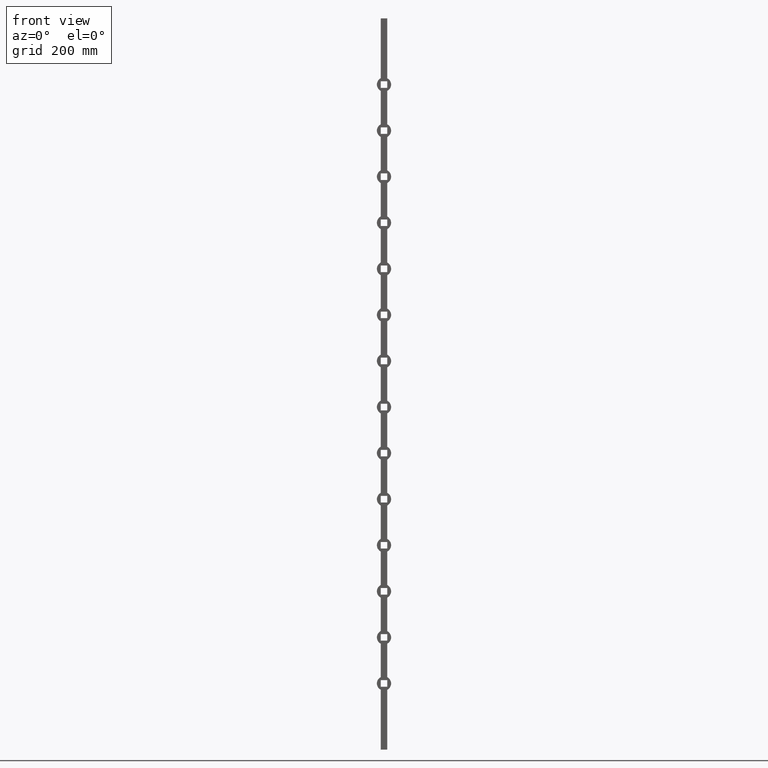
[diagram: clean part render]
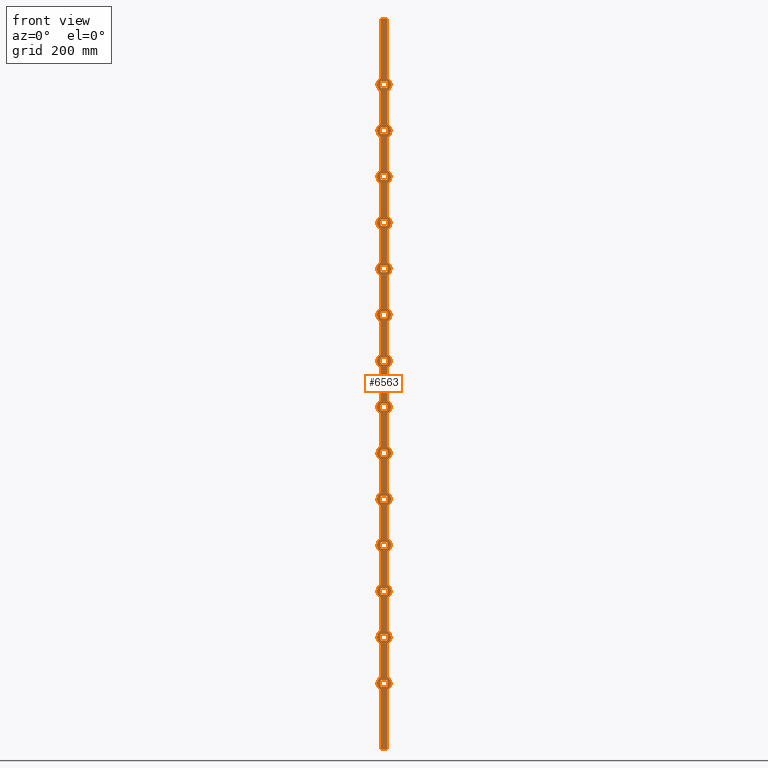
[diagram: same view with one face highlighted and labeled with its STEP entity id]
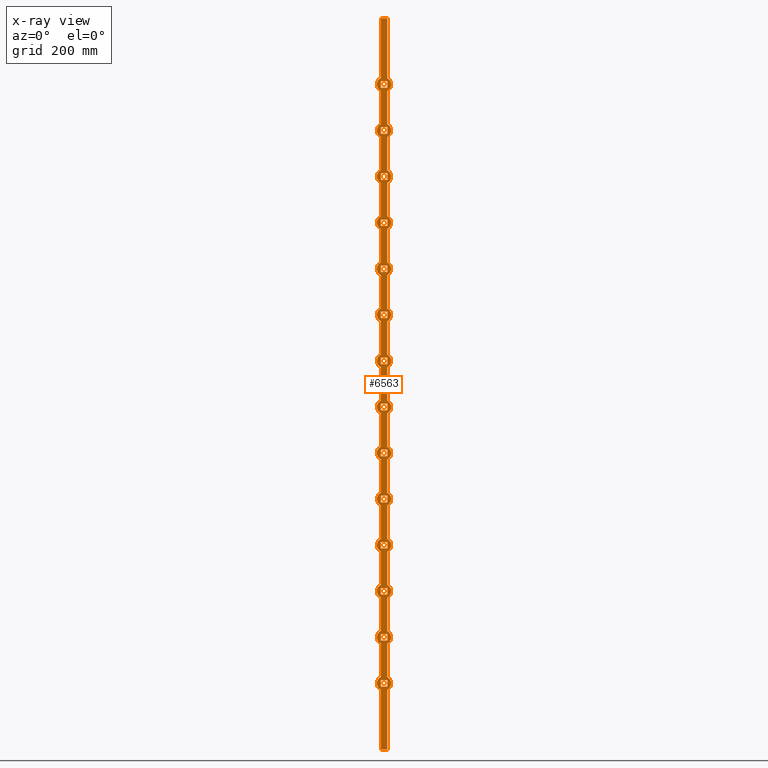
[diagram: x-ray of the same camera — body ghosted, the highlighted face saturated]
A machine part, front view. The second image highlights one B-rep face of the part: STEP entity #6563.
The next image is the same camera in x-ray: the body ghosted, the highlighted face saturated — about 0% of this face is hidden behind the body in this view.
In plain terms, the highlighted planar face has unit normal (0, 1, 0).
Its self-contained STEP definition (entity closure, byte-faithful):
#6 = CIRCLE ( 'NONE', #7382, 19.49999999999996092 ) ;
#9 = VECTOR ( 'NONE', #5274, 1000.000000000000000 ) ;
#25 = EDGE_CURVE ( 'NONE', #3687, #5623, #5934, .T. ) ;
#27 = AXIS2_PLACEMENT_3D ( 'NONE', #10884, #4572, #2513 ) ;
#38 = CARTESIAN_POINT ( 'NONE',  ( -9.000000000000010658, -9.000000000000003553, 179.9999999999999432 ) ) ;
#60 = ORIENTED_EDGE ( 'NONE', *, *, #7572, .F. ) ;
#72 = DIRECTION ( 'NONE',  ( -0.000000000000000000, -0.000000000000000000, -1.000000000000000000 ) ) ;
#90 = DIRECTION ( 'NONE',  ( -0.000000000000000000, -0.000000000000000000, -1.000000000000000000 ) ) ;
#114 = EDGE_CURVE ( 'NONE', #10698, #5602, #4319, .T. ) ;
#140 = CARTESIAN_POINT ( 'NONE',  ( -9.000000000000008882, -9.000000000000003553, 576.0000000000000000 ) ) ;
#159 = FACE_BOUND ( 'NONE', #2027, .T. ) ;
#181 = EDGE_LOOP ( 'NONE', ( #13453, #7367, #6824, #8686 ) ) ;
#211 = LINE ( 'NONE', #12661, #8298 ) ;
#233 = LINE ( 'NONE', #8191, #11806 ) ;
#274 = EDGE_CURVE ( 'NONE', #9425, #5724, #8625, .T. ) ;
#284 = ORIENTED_EDGE ( 'NONE', *, *, #12058, .T. ) ;
#325 = DIRECTION ( 'NONE',  ( -0.000000000000000000, -0.000000000000000000, -1.000000000000000000 ) ) ;
#331 = ORIENTED_EDGE ( 'NONE', *, *, #10855, .T. ) ;
#333 = CARTESIAN_POINT ( 'NONE',  ( 9.000000000000007105, -9.000000000000003553, 828.0000000000000000 ) ) ;
#347 = ORIENTED_EDGE ( 'NONE', *, *, #11049, .T. ) ;
#350 = EDGE_CURVE ( 'NONE', #11770, #7798, #10760, .T. ) ;
#351 = LINE ( 'NONE', #2303, #814 ) ;
#358 = VERTEX_POINT ( 'NONE', #893 ) ;
#384 = EDGE_CURVE ( 'NONE', #4333, #7914, #1188, .T. ) ;
#422 = LINE ( 'NONE', #11443, #2257 ) ;
#426 = CARTESIAN_POINT ( 'NONE',  ( 0.000000000000000000, -9.000000000000000000, -441.0000000000000568 ) ) ;
#468 = LINE ( 'NONE', #2922, #3932 ) ;
#489 = DIRECTION ( 'NONE',  ( 1.000000000000000000, 0.000000000000000000, 0.000000000000000000 ) ) ;
#517 = EDGE_CURVE ( 'NONE', #11792, #10013, #1657, .T. ) ;
#565 = EDGE_CURVE ( 'NONE', #6488, #11552, #11934, .T. ) ;
#566 = CIRCLE ( 'NONE', #2436, 19.50000000000001776 ) ;
#572 = EDGE_CURVE ( 'NONE', #9525, #9425, #4147, .T. ) ;
#613 = DIRECTION ( 'NONE',  ( 0.000000000000000000, 1.000000000000000000, 0.000000000000000000 ) ) ;
#619 = CIRCLE ( 'NONE', #2620, 19.50000000000001776 ) ;
#622 = ORIENTED_EDGE ( 'NONE', *, *, #5460, .F. ) ;
#654 = VERTEX_POINT ( 'NONE', #12049 ) ;
#670 = DIRECTION ( 'NONE',  ( 0.000000000000000000, 1.000000000000000000, 0.000000000000000000 ) ) ;
#694 = DIRECTION ( 'NONE',  ( 1.000000000000000000, 0.000000000000000000, 0.000000000000000000 ) ) ;
#726 = EDGE_CURVE ( 'NONE', #8123, #10072, #12957, .T. ) ;
#731 = AXIS2_PLACEMENT_3D ( 'NONE', #12878, #2288, #12832 ) ;
#771 = CARTESIAN_POINT ( 'NONE',  ( -9.000000000000010658, -9.000000000000001776, -197.9999999999999432 ) ) ;
#790 = LINE ( 'NONE', #10004, #6916 ) ;
#800 = FACE_BOUND ( 'NONE', #6641, .T. ) ;
#807 = PLANE ( 'NONE',  #2532 ) ;
#814 = VECTOR ( 'NONE', #12794, 1000.000000000000000 ) ;
#840 = ORIENTED_EDGE ( 'NONE', *, *, #7410, .T. ) ;
#850 = CARTESIAN_POINT ( 'NONE',  ( 8.999999999999998224, -9.000000000000003553, -171.7011561079938531 ) ) ;
#855 = ORIENTED_EDGE ( 'NONE', *, *, #9709, .T. ) ;
#859 = VECTOR ( 'NONE', #5550, 1000.000000000000000 ) ;
#860 = CARTESIAN_POINT ( 'NONE',  ( -9.000000000000008882, -9.000000000000003553, -305.9999999999999432 ) ) ;
#864 = CARTESIAN_POINT ( 'NONE',  ( -9.000000000000000000, -9.000000000000000000, 836.2988438920061753 ) ) ;
#873 = ORIENTED_EDGE ( 'NONE', *, *, #2707, .F. ) ;
#886 = ORIENTED_EDGE ( 'NONE', *, *, #6105, .T. ) ;
#893 = CARTESIAN_POINT ( 'NONE',  ( -9.000000000000008882, -9.000000000000003553, -809.9999999999998863 ) ) ;
#907 = EDGE_CURVE ( 'NONE', #6951, #7939, #4948, .T. ) ;
#911 = DIRECTION ( 'NONE',  ( -1.927470528863117076E-16, -0.000000000000000000, -1.000000000000000000 ) ) ;
#921 = DIRECTION ( 'NONE',  ( 1.000000000000000000, 0.000000000000000000, 0.000000000000000000 ) ) ;
#923 = CARTESIAN_POINT ( 'NONE',  ( 8.999999999999998224, -9.000000000000000000, 297.7011561079937678 ) ) ;
#938 = CARTESIAN_POINT ( 'NONE',  ( 0.000000000000000000, -9.000000000000000000, 440.9999999999999432 ) ) ;
#941 = DIRECTION ( 'NONE',  ( -1.000000000000000000, -0.000000000000000000, -0.000000000000000000 ) ) ;
#942 = LINE ( 'NONE', #9753, #6918 ) ;
#947 = EDGE_CURVE ( 'NONE', #9255, #4959, #9760, .T. ) ;
#950 = AXIS2_PLACEMENT_3D ( 'NONE', #8809, #1371, #1427 ) ;
#966 = CARTESIAN_POINT ( 'NONE',  ( 9.000000000000007105, -9.000000000000003553, -558.0000000000001137 ) ) ;
#985 = FACE_BOUND ( 'NONE', #5783, .T. ) ;
#991 = VERTEX_POINT ( 'NONE', #1953 ) ;
#992 = EDGE_CURVE ( 'NONE', #10008, #5963, #5458, .T. ) ;
#1007 = VERTEX_POINT ( 'NONE', #966 ) ;
#1011 = ORIENTED_EDGE ( 'NONE', *, *, #6120, .F. ) ;
#1018 = VERTEX_POINT ( 'NONE', #7598 ) ;
#1019 = VECTOR ( 'NONE', #3094, 1000.000000000000000 ) ;
#1061 = VECTOR ( 'NONE', #9579, 1000.000000000000000 ) ;
#1074 = DIRECTION ( 'NONE',  ( -0.000000000000000000, -0.000000000000000000, -1.000000000000000000 ) ) ;
#1077 = VERTEX_POINT ( 'NONE', #4618 ) ;
#1084 = CARTESIAN_POINT ( 'NONE',  ( -9.000000000000000000, -9.000000000000001776, -1000.000000000000000 ) ) ;
#1110 = DIRECTION ( 'NONE',  ( 0.000000000000000000, 1.000000000000000000, 0.000000000000000000 ) ) ;
#1117 = CARTESIAN_POINT ( 'NONE',  ( -9.000000000000000000, -9.000000000000001776, 1000.000000000000000 ) ) ;
#1131 = VECTOR ( 'NONE', #13195, 1000.000000000000000 ) ;
#1132 = VERTEX_POINT ( 'NONE', #4543 ) ;
#1139 = CARTESIAN_POINT ( 'NONE',  ( 0.000000000000000000, -9.000000000000000000, 314.9999999999999432 ) ) ;
#1153 = DIRECTION ( 'NONE',  ( 0.000000000000000000, 0.000000000000000000, 1.000000000000000000 ) ) ;
#1173 = ORIENTED_EDGE ( 'NONE', *, *, #3429, .T. ) ;
#1188 = CIRCLE ( 'NONE', #13294, 19.50000000000000355 ) ;
#1191 = EDGE_CURVE ( 'NONE', #1801, #10453, #4778, .T. ) ;
#1195 = ORIENTED_EDGE ( 'NONE', *, *, #6925, .F. ) ;
#1199 = ORIENTED_EDGE ( 'NONE', *, *, #12433, .F. ) ;
#1211 = ORIENTED_EDGE ( 'NONE', *, *, #12351, .F. ) ;
#1220 = LINE ( 'NONE', #10809, #9972 ) ;
#1231 = CARTESIAN_POINT ( 'NONE',  ( -9.000000000000008882, -9.000000000000003553, -54.00000000000004974 ) ) ;
#1285 = VERTEX_POINT ( 'NONE', #11546 ) ;
#1303 = DIRECTION ( 'NONE',  ( 1.000000000000000000, 0.000000000000000000, 0.000000000000000000 ) ) ;
#1312 = ORIENTED_EDGE ( 'NONE', *, *, #13491, .T. ) ;
#1313 = CARTESIAN_POINT ( 'NONE',  ( -9.000000000000010658, -9.000000000000003553, 305.9999999999999432 ) ) ;
#1315 = DIRECTION ( 'NONE',  ( 9.637352644315585382E-17, 0.000000000000000000, 1.000000000000000000 ) ) ;
#1327 = VECTOR ( 'NONE', #2325, 1000.000000000000000 ) ;
#1342 = CARTESIAN_POINT ( 'NONE',  ( -9.000000000000010658, -9.000000000000003553, -828.0000000000000000 ) ) ;
#1345 = CARTESIAN_POINT ( 'NONE',  ( -9.000000000000000000, -9.000000000000001776, -1000.000000000000000 ) ) ;
#1347 = ORIENTED_EDGE ( 'NONE', *, *, #8097, .T. ) ;
#1371 = DIRECTION ( 'NONE',  ( 0.000000000000000000, 1.000000000000000000, 0.000000000000000000 ) ) ;
#1378 = CARTESIAN_POINT ( 'NONE',  ( -9.000000000000010658, -9.000000000000001776, 683.9999999999998863 ) ) ;
#1393 = LINE ( 'NONE', #4229, #6334 ) ;
#1395 = VECTOR ( 'NONE', #8435, 1000.000000000000000 ) ;
#1420 = CARTESIAN_POINT ( 'NONE',  ( 8.999999999999998224, -9.000000000000000000, -206.2988438920062606 ) ) ;
#1425 = CARTESIAN_POINT ( 'NONE',  ( -9.000000000000008882, -9.000000000000003553, 197.9999999999999432 ) ) ;
#1427 = DIRECTION ( 'NONE',  ( 0.000000000000000000, 0.000000000000000000, 1.000000000000000000 ) ) ;
#1432 = CARTESIAN_POINT ( 'NONE',  ( -9.000000000000000000, -9.000000000000001776, 1000.000000000000000 ) ) ;
#1458 = EDGE_CURVE ( 'NONE', #2369, #2726, #11746, .T. ) ;
#1500 = VERTEX_POINT ( 'NONE', #5484 ) ;
#1505 = VECTOR ( 'NONE', #4073, 1000.000000000000000 ) ;
#1507 = CARTESIAN_POINT ( 'NONE',  ( -9.000000000000010658, -9.000000000000003553, 683.9999999999998863 ) ) ;
#1529 = VECTOR ( 'NONE', #911, 1000.000000000000000 ) ;
#1551 = VERTEX_POINT ( 'NONE', #7761 ) ;
#1554 = EDGE_LOOP ( 'NONE', ( #7947, #12623, #855, #6864 ) ) ;
#1579 = VERTEX_POINT ( 'NONE', #7451 ) ;
#1585 = CARTESIAN_POINT ( 'NONE',  ( 0.000000000000000000, -9.000000000000000000, -63.00000000000005684 ) ) ;
#1627 = VERTEX_POINT ( 'NONE', #7363 ) ;
#1636 = DIRECTION ( 'NONE',  ( -0.000000000000000000, -0.000000000000000000, -1.000000000000000000 ) ) ;
#1655 = LINE ( 'NONE', #7040, #3171 ) ;
#1657 = LINE ( 'NONE', #11556, #9 ) ;
#1719 = DIRECTION ( 'NONE',  ( 0.000000000000000000, 0.000000000000000000, 1.000000000000000000 ) ) ;
#1734 = VERTEX_POINT ( 'NONE', #333 ) ;
#1738 = DIRECTION ( 'NONE',  ( -0.000000000000000000, -0.000000000000000000, -1.000000000000000000 ) ) ;
#1771 = ORIENTED_EDGE ( 'NONE', *, *, #8200, .T. ) ;
#1801 = VERTEX_POINT ( 'NONE', #8993 ) ;
#1805 = ORIENTED_EDGE ( 'NONE', *, *, #11944, .T. ) ;
#1813 = DIRECTION ( 'NONE',  ( 0.000000000000000000, 1.000000000000000000, 0.000000000000000000 ) ) ;
#1827 = EDGE_CURVE ( 'NONE', #10417, #7914, #6028, .T. ) ;
#1834 = VERTEX_POINT ( 'NONE', #2806 ) ;
#1846 = VERTEX_POINT ( 'NONE', #9689 ) ;
#1857 = VERTEX_POINT ( 'NONE', #6588 ) ;
#1877 = LINE ( 'NONE', #9359, #12467 ) ;
#1907 = ORIENTED_EDGE ( 'NONE', *, *, #274, .F. ) ;
#1921 = EDGE_CURVE ( 'NONE', #7798, #2856, #13506, .T. ) ;
#1953 = CARTESIAN_POINT ( 'NONE',  ( -9.000000000000000000, -9.000000000000003553, 549.7011561079937110 ) ) ;
#1961 = CARTESIAN_POINT ( 'NONE',  ( -9.000000000000000000, -9.000000000000001776, 1000.000000000000000 ) ) ;
#1970 = DIRECTION ( 'NONE',  ( -0.000000000000000000, -0.000000000000000000, -1.000000000000000000 ) ) ;
#1974 = DIRECTION ( 'NONE',  ( 0.000000000000000000, 1.000000000000000000, 0.000000000000000000 ) ) ;
#1995 = DIRECTION ( 'NONE',  ( 9.637352644315585382E-17, 0.000000000000000000, 1.000000000000000000 ) ) ;
#1997 = VECTOR ( 'NONE', #921, 1000.000000000000000 ) ;
#2027 = EDGE_LOOP ( 'NONE', ( #347, #5690, #9282, #3501 ) ) ;
#2044 = CIRCLE ( 'NONE', #11799, 19.50000000000001776 ) ;
#2058 = CARTESIAN_POINT ( 'NONE',  ( 9.000000000000005329, -9.000000000000003553, 53.99999999999993605 ) ) ;
#2078 = CARTESIAN_POINT ( 'NONE',  ( 0.000000000000000000, -9.000000000000000000, 62.99999999999994316 ) ) ;
#2116 = DIRECTION ( 'NONE',  ( 0.000000000000000000, 0.000000000000000000, 1.000000000000000000 ) ) ;
#2119 = EDGE_CURVE ( 'NONE', #991, #1834, #3725, .T. ) ;
#2123 = CARTESIAN_POINT ( 'NONE',  ( -9.000000000000000000, -9.000000000000003553, -584.2988438920064027 ) ) ;
#2125 = LINE ( 'NONE', #2150, #8053 ) ;
#2130 = CARTESIAN_POINT ( 'NONE',  ( -9.000000000000008882, -9.000000000000003553, 576.0000000000000000 ) ) ;
#2150 = CARTESIAN_POINT ( 'NONE',  ( -9.000000000000008882, -9.000000000000003553, -432.0000000000000568 ) ) ;
#2151 = CIRCLE ( 'NONE', #4275, 19.50000000000001776 ) ;
#2162 = FACE_BOUND ( 'NONE', #13688, .T. ) ;
#2197 = VECTOR ( 'NONE', #9325, 1000.000000000000000 ) ;
#2233 = ORIENTED_EDGE ( 'NONE', *, *, #4552, .T. ) ;
#2251 = CARTESIAN_POINT ( 'NONE',  ( 8.999999999999998224, -9.000000000000003553, -423.7011561079938815 ) ) ;
#2257 = VECTOR ( 'NONE', #13419, 1000.000000000000000 ) ;
#2258 = DIRECTION ( 'NONE',  ( -0.000000000000000000, -0.000000000000000000, -1.000000000000000000 ) ) ;
#2271 = DIRECTION ( 'NONE',  ( 0.000000000000000000, 0.000000000000000000, 1.000000000000000000 ) ) ;
#2281 = VECTOR ( 'NONE', #1074, 1000.000000000000000 ) ;
#2288 = DIRECTION ( 'NONE',  ( 0.000000000000000000, 1.000000000000000000, 0.000000000000000000 ) ) ;
#2291 = DIRECTION ( 'NONE',  ( 9.637352644315585382E-17, 0.000000000000000000, 1.000000000000000000 ) ) ;
#2292 = CARTESIAN_POINT ( 'NONE',  ( 0.000000000000000000, -9.000000000000000000, -819.0000000000000000 ) ) ;
#2301 = CARTESIAN_POINT ( 'NONE',  ( 9.000000000000005329, -9.000000000000003553, -323.9999999999999432 ) ) ;
#2303 = CARTESIAN_POINT ( 'NONE',  ( 9.000000000000005329, -9.000000000000003553, -576.0000000000002274 ) ) ;
#2325 = DIRECTION ( 'NONE',  ( 9.637352644315585382E-17, 0.000000000000000000, 1.000000000000000000 ) ) ;
#2369 = VERTEX_POINT ( 'NONE', #6077 ) ;
#2371 = CARTESIAN_POINT ( 'NONE',  ( 8.999999999999998224, -9.000000000000000000, -836.2988438920061753 ) ) ;
#2392 = CARTESIAN_POINT ( 'NONE',  ( -9.000000000000000000, -9.000000000000003553, -458.2988438920062322 ) ) ;
#2416 = CIRCLE ( 'NONE', #2648, 19.50000000000001776 ) ;
#2422 = VERTEX_POINT ( 'NONE', #5026 ) ;
#2436 = AXIS2_PLACEMENT_3D ( 'NONE', #12499, #6131, #5990 ) ;
#2468 = VECTOR ( 'NONE', #1315, 1000.000000000000000 ) ;
#2469 = DIRECTION ( 'NONE',  ( -1.000000000000000000, -0.000000000000000000, -0.000000000000000000 ) ) ;
#2470 = CARTESIAN_POINT ( 'NONE',  ( -9.000000000000008882, -9.000000000000003553, 197.9999999999999432 ) ) ;
#2505 = FACE_BOUND ( 'NONE', #8764, .T. ) ;
#2508 = DIRECTION ( 'NONE',  ( 0.000000000000000000, 0.000000000000000000, 1.000000000000000000 ) ) ;
#2513 = DIRECTION ( 'NONE',  ( 0.000000000000000000, 0.000000000000000000, 1.000000000000000000 ) ) ;
#2516 = VERTEX_POINT ( 'NONE', #2994 ) ;
#2532 = AXIS2_PLACEMENT_3D ( 'NONE', #2921, #10187, #5020 ) ;
#2535 = LINE ( 'NONE', #5718, #4960 ) ;
#2565 = CARTESIAN_POINT ( 'NONE',  ( 9.000000000000007105, -9.000000000000003553, -809.9999999999998863 ) ) ;
#2568 = LINE ( 'NONE', #12531, #6835 ) ;
#2571 = VERTEX_POINT ( 'NONE', #10364 ) ;
#2573 = EDGE_CURVE ( 'NONE', #991, #7653, #3882, .T. ) ;
#2620 = AXIS2_PLACEMENT_3D ( 'NONE', #938, #8348, #4134 ) ;
#2636 = DIRECTION ( 'NONE',  ( 0.000000000000000000, 1.000000000000000000, 0.000000000000000000 ) ) ;
#2648 = AXIS2_PLACEMENT_3D ( 'NONE', #8152, #8054, #4860 ) ;
#2662 = VERTEX_POINT ( 'NONE', #11522 ) ;
#2696 = VERTEX_POINT ( 'NONE', #8262 ) ;
#2707 = EDGE_CURVE ( 'NONE', #11662, #6435, #566, .T. ) ;
#2726 = VERTEX_POINT ( 'NONE', #864 ) ;
#2730 = DIRECTION ( 'NONE',  ( -1.000000000000000000, -0.000000000000000000, -0.000000000000000000 ) ) ;
#2735 = VECTOR ( 'NONE', #1303, 1000.000000000000000 ) ;
#2783 = DIRECTION ( 'NONE',  ( 0.000000000000000000, 1.000000000000000000, 0.000000000000000000 ) ) ;
#2792 = VERTEX_POINT ( 'NONE', #8406 ) ;
#2806 = CARTESIAN_POINT ( 'NONE',  ( -9.000000000000000000, -9.000000000000000000, 458.2988438920061753 ) ) ;
#2811 = DIRECTION ( 'NONE',  ( 0.000000000000000000, 1.000000000000000000, 0.000000000000000000 ) ) ;
#2842 = ORIENTED_EDGE ( 'NONE', *, *, #9361, .T. ) ;
#2855 = AXIS2_PLACEMENT_3D ( 'NONE', #6258, #3145, #13695 ) ;
#2856 = VERTEX_POINT ( 'NONE', #6416 ) ;
#2867 = ORIENTED_EDGE ( 'NONE', *, *, #2973, .F. ) ;
#2871 = EDGE_LOOP ( 'NONE', ( #8740, #2842, #1805, #6310 ) ) ;
#2898 = DIRECTION ( 'NONE',  ( -0.000000000000000000, -0.000000000000000000, -1.000000000000000000 ) ) ;
#2910 = CARTESIAN_POINT ( 'NONE',  ( -9.000000000000008882, -9.000000000000003553, -54.00000000000004974 ) ) ;
#2917 = EDGE_CURVE ( 'NONE', #5151, #11797, #9833, .T. ) ;
#2921 = CARTESIAN_POINT ( 'NONE',  ( -9.000000000000000000, -9.000000000000001776, 1000.000000000000000 ) ) ;
#2922 = CARTESIAN_POINT ( 'NONE',  ( -9.000000000000008882, -9.000000000000003553, 702.0000000000000000 ) ) ;
#2924 = ORIENTED_EDGE ( 'NONE', *, *, #10213, .T. ) ;
#2952 = EDGE_CURVE ( 'NONE', #8518, #3394, #13649, .T. ) ;
#2969 = VECTOR ( 'NONE', #8254, 1000.000000000000000 ) ;
#2973 = EDGE_CURVE ( 'NONE', #3103, #11448, #12299, .T. ) ;
#2994 = CARTESIAN_POINT ( 'NONE',  ( 9.000000000000007105, -9.000000000000003553, 702.0000000000000000 ) ) ;
#2995 = VERTEX_POINT ( 'NONE', #10135 ) ;
#3023 = CARTESIAN_POINT ( 'NONE',  ( 0.000000000000000000, -9.000000000000000000, 440.9999999999999432 ) ) ;
#3039 = CARTESIAN_POINT ( 'NONE',  ( -9.000000000000010658, -9.000000000000003553, -450.0000000000000568 ) ) ;
#3047 = CARTESIAN_POINT ( 'NONE',  ( -9.000000000000000000, -9.000000000000001776, 1000.000000000000000 ) ) ;
#3050 = VERTEX_POINT ( 'NONE', #8065 ) ;
#3052 = CARTESIAN_POINT ( 'NONE',  ( -9.000000000000010658, -9.000000000000003553, 179.9999999999999432 ) ) ;
#3075 = DIRECTION ( 'NONE',  ( -1.927470528863117076E-16, -0.000000000000000000, -1.000000000000000000 ) ) ;
#3082 = DIRECTION ( 'NONE',  ( -0.000000000000000000, -0.000000000000000000, -1.000000000000000000 ) ) ;
#3094 = DIRECTION ( 'NONE',  ( -0.000000000000000000, -0.000000000000000000, -1.000000000000000000 ) ) ;
#3100 = EDGE_CURVE ( 'NONE', #7665, #8060, #7994, .T. ) ;
#3103 = VERTEX_POINT ( 'NONE', #2123 ) ;
#3113 = CARTESIAN_POINT ( 'NONE',  ( -9.000000000000010658, -9.000000000000001776, -827.9999999999998863 ) ) ;
#3145 = DIRECTION ( 'NONE',  ( 0.000000000000000000, 1.000000000000000000, 0.000000000000000000 ) ) ;
#3171 = VECTOR ( 'NONE', #7000, 1000.000000000000000 ) ;
#3175 = EDGE_CURVE ( 'NONE', #1857, #1579, #9310, .T. ) ;
#3184 = CARTESIAN_POINT ( 'NONE',  ( -9.000000000000008882, -9.000000000000003553, -180.0000000000000568 ) ) ;
#3186 = VECTOR ( 'NONE', #4085, 1000.000000000000000 ) ;
#3193 = EDGE_CURVE ( 'NONE', #10292, #8949, #12999, .T. ) ;
#3214 = CARTESIAN_POINT ( 'NONE',  ( -9.000000000000000000, -9.000000000000003553, 171.7011561079937394 ) ) ;
#3230 = ORIENTED_EDGE ( 'NONE', *, *, #7051, .T. ) ;
#3239 = AXIS2_PLACEMENT_3D ( 'NONE', #5578, #7489, #1153 ) ;
#3241 = VERTEX_POINT ( 'NONE', #5422 ) ;
#3267 = CARTESIAN_POINT ( 'NONE',  ( 0.000000000000000000, -9.000000000000000000, -567.0000000000002274 ) ) ;
#3286 = DIRECTION ( 'NONE',  ( -0.000000000000000000, -0.000000000000000000, -1.000000000000000000 ) ) ;
#3315 = VERTEX_POINT ( 'NONE', #1378 ) ;
#3320 = VECTOR ( 'NONE', #5486, 1000.000000000000000 ) ;
#3347 = DIRECTION ( 'NONE',  ( 0.000000000000000000, 1.000000000000000000, 0.000000000000000000 ) ) ;
#3367 = ORIENTED_EDGE ( 'NONE', *, *, #6261, .F. ) ;
#3384 = VECTOR ( 'NONE', #1995, 1000.000000000000000 ) ;
#3394 = VERTEX_POINT ( 'NONE', #4593 ) ;
#3406 = CARTESIAN_POINT ( 'NONE',  ( 8.999999999999998224, -9.000000000000000000, 45.70115610799374650 ) ) ;
#3429 = EDGE_CURVE ( 'NONE', #4987, #3850, #7836, .T. ) ;
#3447 = CARTESIAN_POINT ( 'NONE',  ( -9.000000000000000000, -9.000000000000000000, -675.7011561079938247 ) ) ;
#3455 = EDGE_LOOP ( 'NONE', ( #11969, #4834, #1173, #8773, #1907, #10227, #13131, #1195, #11813, #622, #12020, #11837, #5181, #5448, #8649, #13441, #4005, #10693, #12868, #7791, #1011, #5530, #11295, #13232, #4199, #7827, #10314, #1211, #4009, #3367, #8268, #6160, #5166, #12630, #12461, #8327, #10439, #60, #4988, #4458, #9098, #4269, #5342, #4415, #4128, #1199, #12774, #7789, #8932, #9343, #4775, #9003, #12960, #12083, #3974, #873, #12338, #2867, #8825, #3456 ) ) ;
#3456 = ORIENTED_EDGE ( 'NONE', *, *, #114, .F. ) ;
#3463 = EDGE_CURVE ( 'NONE', #3394, #2696, #7505, .T. ) ;
#3467 = VECTOR ( 'NONE', #489, 1000.000000000000000 ) ;
#3471 = CARTESIAN_POINT ( 'NONE',  ( 8.999999999999998224, -9.000000000000003553, -801.7011561079937110 ) ) ;
#3491 = CARTESIAN_POINT ( 'NONE',  ( 9.000000000000007105, -9.000000000000003553, -180.0000000000000568 ) ) ;
#3497 = VECTOR ( 'NONE', #10802, 1000.000000000000000 ) ;
#3501 = ORIENTED_EDGE ( 'NONE', *, *, #9603, .T. ) ;
#3503 = CARTESIAN_POINT ( 'NONE',  ( 8.999999999999998224, -9.000000000000001776, 1000.000000000000000 ) ) ;
#3526 = VECTOR ( 'NONE', #10867, 1000.000000000000000 ) ;
#3540 = VECTOR ( 'NONE', #9180, 1000.000000000000000 ) ;
#3558 = CARTESIAN_POINT ( 'NONE',  ( -9.000000000000000000, -9.000000000000003553, 801.7011561079937110 ) ) ;
#3568 = LINE ( 'NONE', #6999, #3881 ) ;
#3584 = VECTOR ( 'NONE', #4883, 1000.000000000000000 ) ;
#3614 = DIRECTION ( 'NONE',  ( 0.000000000000000000, 0.000000000000000000, 1.000000000000000000 ) ) ;
#3615 = CARTESIAN_POINT ( 'NONE',  ( -9.000000000000008882, -9.000000000000003553, 323.9999999999999432 ) ) ;
#3618 = CARTESIAN_POINT ( 'NONE',  ( 9.000000000000005329, -9.000000000000003553, 557.9999999999998863 ) ) ;
#3624 = EDGE_CURVE ( 'NONE', #1132, #6435, #7524, .T. ) ;
#3650 = DIRECTION ( 'NONE',  ( 1.000000000000000000, 0.000000000000000000, 0.000000000000000000 ) ) ;
#3653 = DIRECTION ( 'NONE',  ( -1.927470528863117076E-16, -0.000000000000000000, -1.000000000000000000 ) ) ;
#3663 = AXIS2_PLACEMENT_3D ( 'NONE', #8311, #1110, #5295 ) ;
#3681 = EDGE_LOOP ( 'NONE', ( #8199, #3230, #8951, #6932 ) ) ;
#3687 = VERTEX_POINT ( 'NONE', #12369 ) ;
#3725 = LINE ( 'NONE', #8553, #7535 ) ;
#3744 = VECTOR ( 'NONE', #12782, 1000.000000000000000 ) ;
#3760 = EDGE_LOOP ( 'NONE', ( #8726, #10274, #8016, #11536 ) ) ;
#3770 = VERTEX_POINT ( 'NONE', #7366 ) ;
#3796 = AXIS2_PLACEMENT_3D ( 'NONE', #12100, #10001, #2508 ) ;
#3806 = CIRCLE ( 'NONE', #3663, 19.50000000000000355 ) ;
#3817 = DIRECTION ( 'NONE',  ( 0.000000000000000000, 0.000000000000000000, 1.000000000000000000 ) ) ;
#3844 = CARTESIAN_POINT ( 'NONE',  ( 8.999999999999998224, -9.000000000000000000, -458.2988438920062322 ) ) ;
#3846 = VERTEX_POINT ( 'NONE', #5179 ) ;
#3849 = LINE ( 'NONE', #12355, #3540 ) ;
#3850 = VERTEX_POINT ( 'NONE', #1084 ) ;
#3853 = DIRECTION ( 'NONE',  ( 0.000000000000000000, 0.000000000000000000, 1.000000000000000000 ) ) ;
#3881 = VECTOR ( 'NONE', #10356, 1000.000000000000000 ) ;
#3882 = CIRCLE ( 'NONE', #2855, 19.49999999999996092 ) ;
#3898 = CARTESIAN_POINT ( 'NONE',  ( -9.000000000000010658, -9.000000000000001776, 53.99999999999993605 ) ) ;
#3932 = VECTOR ( 'NONE', #9267, 1000.000000000000000 ) ;
#3944 = DIRECTION ( 'NONE',  ( 0.000000000000000000, 0.000000000000000000, 1.000000000000000000 ) ) ;
#3953 = FACE_BOUND ( 'NONE', #1554, .T. ) ;
#3974 = ORIENTED_EDGE ( 'NONE', *, *, #3624, .T. ) ;
#3983 = ORIENTED_EDGE ( 'NONE', *, *, #12034, .T. ) ;
#4005 = ORIENTED_EDGE ( 'NONE', *, *, #8988, .F. ) ;
#4006 = CARTESIAN_POINT ( 'NONE',  ( 9.000000000000005329, -9.000000000000003553, -576.0000000000002274 ) ) ;
#4007 = CARTESIAN_POINT ( 'NONE',  ( -9.000000000000000000, -9.000000000000001776, 1000.000000000000000 ) ) ;
#4009 = ORIENTED_EDGE ( 'NONE', *, *, #9665, .F. ) ;
#4019 = CARTESIAN_POINT ( 'NONE',  ( 9.000000000000007105, -9.000000000000003553, -54.00000000000004974 ) ) ;
#4024 = DIRECTION ( 'NONE',  ( -0.000000000000000000, -0.000000000000000000, -1.000000000000000000 ) ) ;
#4029 = VECTOR ( 'NONE', #941, 1000.000000000000000 ) ;
#4038 = VERTEX_POINT ( 'NONE', #1420 ) ;
#4056 = VECTOR ( 'NONE', #1738, 1000.000000000000000 ) ;
#4058 = DIRECTION ( 'NONE',  ( -1.000000000000000000, -0.000000000000000000, -0.000000000000000000 ) ) ;
#4073 = DIRECTION ( 'NONE',  ( -1.927470528863117076E-16, -0.000000000000000000, -1.000000000000000000 ) ) ;
#4077 = CARTESIAN_POINT ( 'NONE',  ( 8.999999999999998224, -9.000000000000000000, 801.7011561079937110 ) ) ;
#4084 = DIRECTION ( 'NONE',  ( 9.637352644315585382E-17, 0.000000000000000000, 1.000000000000000000 ) ) ;
#4085 = DIRECTION ( 'NONE',  ( -0.000000000000000000, -0.000000000000000000, -1.000000000000000000 ) ) ;
#4111 = VERTEX_POINT ( 'NONE', #8752 ) ;
#4128 = ORIENTED_EDGE ( 'NONE', *, *, #4712, .T. ) ;
#4134 = DIRECTION ( 'NONE',  ( 0.000000000000000000, 0.000000000000000000, 1.000000000000000000 ) ) ;
#4147 = CIRCLE ( 'NONE', #950, 19.49999999999996092 ) ;
#4153 = VERTEX_POINT ( 'NONE', #3844 ) ;
#4179 = CARTESIAN_POINT ( 'NONE',  ( 9.000000000000007105, -9.000000000000003553, 449.9999999999999432 ) ) ;
#4185 = ORIENTED_EDGE ( 'NONE', *, *, #13200, .T. ) ;
#4199 = ORIENTED_EDGE ( 'NONE', *, *, #4754, .F. ) ;
#4216 = DIRECTION ( 'NONE',  ( 0.000000000000000000, 0.000000000000000000, 1.000000000000000000 ) ) ;
#4229 = CARTESIAN_POINT ( 'NONE',  ( 9.000000000000005329, -9.000000000000003553, -72.00000000000005684 ) ) ;
#4269 = ORIENTED_EDGE ( 'NONE', *, *, #7537, .F. ) ;
#4274 = EDGE_CURVE ( 'NONE', #2516, #12080, #11794, .T. ) ;
#4275 = AXIS2_PLACEMENT_3D ( 'NONE', #5796, #13094, #3614 ) ;
#4303 = VECTOR ( 'NONE', #9611, 1000.000000000000000 ) ;
#4311 = CARTESIAN_POINT ( 'NONE',  ( -9.000000000000010658, -9.000000000000001776, -72.00000000000005684 ) ) ;
#4314 = EDGE_CURVE ( 'NONE', #2696, #10608, #12989, .T. ) ;
#4319 = CIRCLE ( 'NONE', #11863, 19.49999999999996092 ) ;
#4333 = VERTEX_POINT ( 'NONE', #10481 ) ;
#4415 = ORIENTED_EDGE ( 'NONE', *, *, #3193, .F. ) ;
#4423 = CARTESIAN_POINT ( 'NONE',  ( -9.000000000000008882, -9.000000000000003553, 449.9999999999999432 ) ) ;
#4433 = CARTESIAN_POINT ( 'NONE',  ( 0.000000000000000000, -9.000000000000000000, 567.0000000000000000 ) ) ;
#4437 = EDGE_CURVE ( 'NONE', #9272, #11848, #7508, .T. ) ;
#4458 = ORIENTED_EDGE ( 'NONE', *, *, #2573, .F. ) ;
#4464 = ORIENTED_EDGE ( 'NONE', *, *, #7476, .T. ) ;
#4466 = CARTESIAN_POINT ( 'NONE',  ( -9.000000000000000000, -9.000000000000003553, -710.2988438920062890 ) ) ;
#4485 = VECTOR ( 'NONE', #90, 1000.000000000000000 ) ;
#4497 = LINE ( 'NONE', #3047, #1019 ) ;
#4517 = EDGE_CURVE ( 'NONE', #1132, #5696, #2044, .T. ) ;
#4543 = CARTESIAN_POINT ( 'NONE',  ( -9.000000000000000000, -9.000000000000003553, -332.2988438920061185 ) ) ;
#4552 = EDGE_CURVE ( 'NONE', #13159, #358, #1220, .T. ) ;
#4572 = DIRECTION ( 'NONE',  ( 0.000000000000000000, 1.000000000000000000, 0.000000000000000000 ) ) ;
#4593 = CARTESIAN_POINT ( 'NONE',  ( 9.000000000000005329, -9.000000000000003553, 557.9999999999998863 ) ) ;
#4618 = CARTESIAN_POINT ( 'NONE',  ( -9.000000000000010658, -9.000000000000001776, 431.9999999999999432 ) ) ;
#4622 = FACE_BOUND ( 'NONE', #8113, .T. ) ;
#4634 = VECTOR ( 'NONE', #4856, 1000.000000000000000 ) ;
#4649 = CIRCLE ( 'NONE', #11258, 19.50000000000001776 ) ;
#4681 = EDGE_CURVE ( 'NONE', #11552, #1500, #2568, .T. ) ;
#4698 = ORIENTED_EDGE ( 'NONE', *, *, #12453, .T. ) ;
#4701 = EDGE_CURVE ( 'NONE', #2369, #2995, #1877, .T. ) ;
#4712 = EDGE_CURVE ( 'NONE', #10292, #12575, #6818, .T. ) ;
#4721 = CARTESIAN_POINT ( 'NONE',  ( 8.999999999999998224, -9.000000000000001776, 1000.000000000000000 ) ) ;
#4722 = AXIS2_PLACEMENT_3D ( 'NONE', #13538, #1974, #8390 ) ;
#4729 = CARTESIAN_POINT ( 'NONE',  ( 9.000000000000005329, -9.000000000000003553, 305.9999999999999432 ) ) ;
#4735 = CARTESIAN_POINT ( 'NONE',  ( -9.000000000000008882, -9.000000000000003553, 828.0000000000000000 ) ) ;
#4751 = CIRCLE ( 'NONE', #4722, 19.49999999999996092 ) ;
#4752 = VERTEX_POINT ( 'NONE', #10658 ) ;
#4754 = EDGE_CURVE ( 'NONE', #654, #13531, #9956, .T. ) ;
#4775 = ORIENTED_EDGE ( 'NONE', *, *, #5468, .T. ) ;
#4777 = CARTESIAN_POINT ( 'NONE',  ( 0.000000000000000000, -9.000000000000000000, -189.0000000000000568 ) ) ;
#4778 = LINE ( 'NONE', #8530, #5776 ) ;
#4834 = ORIENTED_EDGE ( 'NONE', *, *, #13244, .F. ) ;
#4846 = CARTESIAN_POINT ( 'NONE',  ( 8.999999999999998224, -9.000000000000003553, 710.2988438920061753 ) ) ;
#4856 = DIRECTION ( 'NONE',  ( 9.637352644315585382E-17, 0.000000000000000000, 1.000000000000000000 ) ) ;
#4860 = DIRECTION ( 'NONE',  ( 0.000000000000000000, 0.000000000000000000, 1.000000000000000000 ) ) ;
#4883 = DIRECTION ( 'NONE',  ( -1.000000000000000000, -0.000000000000000000, -0.000000000000000000 ) ) ;
#4891 = CARTESIAN_POINT ( 'NONE',  ( 0.000000000000000000, -9.000000000000000000, 188.9999999999999432 ) ) ;
#4909 = LINE ( 'NONE', #12109, #1131 ) ;
#4910 = ORIENTED_EDGE ( 'NONE', *, *, #565, .T. ) ;
#4916 = CIRCLE ( 'NONE', #3239, 19.49999999999996092 ) ;
#4933 = FACE_BOUND ( 'NONE', #5927, .T. ) ;
#4948 = LINE ( 'NONE', #2301, #1505 ) ;
#4959 = VERTEX_POINT ( 'NONE', #4179 ) ;
#4960 = VECTOR ( 'NONE', #2730, 1000.000000000000000 ) ;
#4961 = CARTESIAN_POINT ( 'NONE',  ( 8.999999999999998224, -9.000000000000003553, 332.2988438920061185 ) ) ;
#4962 = VECTOR ( 'NONE', #1970, 1000.000000000000000 ) ;
#4987 = VERTEX_POINT ( 'NONE', #7262 ) ;
#4988 = ORIENTED_EDGE ( 'NONE', *, *, #5543, .T. ) ;
#5000 = EDGE_CURVE ( 'NONE', #10698, #9950, #211, .T. ) ;
#5020 = DIRECTION ( 'NONE',  ( 0.000000000000000000, -0.000000000000000000, 1.000000000000000000 ) ) ;
#5026 = CARTESIAN_POINT ( 'NONE',  ( -9.000000000000000000, -9.000000000000003553, 675.7011561079937110 ) ) ;
#5031 = DIRECTION ( 'NONE',  ( 0.000000000000000000, 1.000000000000000000, 0.000000000000000000 ) ) ;
#5041 = DIRECTION ( 'NONE',  ( 0.000000000000000000, 1.000000000000000000, 0.000000000000000000 ) ) ;
#5051 = AXIS2_PLACEMENT_3D ( 'NONE', #3023, #5031, #3853 ) ;
#5084 = CARTESIAN_POINT ( 'NONE',  ( 8.999999999999998224, -9.000000000000001776, 1000.000000000000000 ) ) ;
#5097 = VERTEX_POINT ( 'NONE', #10443 ) ;
#5132 = VERTEX_POINT ( 'NONE', #3558 ) ;
#5151 = VERTEX_POINT ( 'NONE', #1425 ) ;
#5166 = ORIENTED_EDGE ( 'NONE', *, *, #10999, .F. ) ;
#5179 = CARTESIAN_POINT ( 'NONE',  ( 8.999999999999998224, -9.000000000000000000, -584.2988438920064027 ) ) ;
#5181 = ORIENTED_EDGE ( 'NONE', *, *, #1191, .F. ) ;
#5187 = VECTOR ( 'NONE', #5326, 1000.000000000000000 ) ;
#5204 = EDGE_CURVE ( 'NONE', #4153, #11921, #11592, .T. ) ;
#5274 = DIRECTION ( 'NONE',  ( -1.000000000000000000, -0.000000000000000000, -0.000000000000000000 ) ) ;
#5275 = VECTOR ( 'NONE', #5354, 1000.000000000000000 ) ;
#5284 = ORIENTED_EDGE ( 'NONE', *, *, #11367, .T. ) ;
#5291 = EDGE_CURVE ( 'NONE', #5097, #13007, #11948, .T. ) ;
#5295 = DIRECTION ( 'NONE',  ( 0.000000000000000000, 0.000000000000000000, 1.000000000000000000 ) ) ;
#5306 = AXIS2_PLACEMENT_3D ( 'NONE', #4891, #1813, #1719 ) ;
#5326 = DIRECTION ( 'NONE',  ( -0.000000000000000000, -0.000000000000000000, -1.000000000000000000 ) ) ;
#5342 = ORIENTED_EDGE ( 'NONE', *, *, #11079, .T. ) ;
#5354 = DIRECTION ( 'NONE',  ( -1.927470528863117076E-16, -0.000000000000000000, -1.000000000000000000 ) ) ;
#5382 = VERTEX_POINT ( 'NONE', #12257 ) ;
#5422 = CARTESIAN_POINT ( 'NONE',  ( 9.000000000000005329, -9.000000000000003553, -198.0000000000000568 ) ) ;
#5424 = EDGE_CURVE ( 'NONE', #9318, #5696, #11147, .T. ) ;
#5433 = VERTEX_POINT ( 'NONE', #6138 ) ;
#5444 = DIRECTION ( 'NONE',  ( 0.000000000000000000, 0.000000000000000000, 1.000000000000000000 ) ) ;
#5448 = ORIENTED_EDGE ( 'NONE', *, *, #10878, .F. ) ;
#5458 = LINE ( 'NONE', #2058, #10568 ) ;
#5460 = EDGE_CURVE ( 'NONE', #11921, #3846, #6554, .T. ) ;
#5468 = EDGE_CURVE ( 'NONE', #5097, #1551, #13683, .T. ) ;
#5484 = CARTESIAN_POINT ( 'NONE',  ( -9.000000000000010658, -9.000000000000001776, -702.0000000000000000 ) ) ;
#5486 = DIRECTION ( 'NONE',  ( -0.000000000000000000, -0.000000000000000000, -1.000000000000000000 ) ) ;
#5490 = CARTESIAN_POINT ( 'NONE',  ( -9.000000000000010658, -9.000000000000003553, -323.9999999999999432 ) ) ;
#5518 = DIRECTION ( 'NONE',  ( 9.637352644315585382E-17, 0.000000000000000000, 1.000000000000000000 ) ) ;
#5530 = ORIENTED_EDGE ( 'NONE', *, *, #1921, .F. ) ;
#5532 = LINE ( 'NONE', #11048, #9832 ) ;
#5543 = EDGE_CURVE ( 'NONE', #2422, #7653, #9698, .T. ) ;
#5550 = DIRECTION ( 'NONE',  ( 9.637352644315585382E-17, 0.000000000000000000, 1.000000000000000000 ) ) ;
#5578 = CARTESIAN_POINT ( 'NONE',  ( 0.000000000000000000, -9.000000000000000000, -693.0000000000001137 ) ) ;
#5588 = CARTESIAN_POINT ( 'NONE',  ( -9.000000000000000000, -9.000000000000001776, 1000.000000000000000 ) ) ;
#5602 = VERTEX_POINT ( 'NONE', #3447 ) ;
#5606 = DIRECTION ( 'NONE',  ( 1.000000000000000000, 0.000000000000000000, 0.000000000000000000 ) ) ;
#5623 = VERTEX_POINT ( 'NONE', #3406 ) ;
#5631 = CARTESIAN_POINT ( 'NONE',  ( 8.999999999999998224, -9.000000000000001776, -1000.000000000000000 ) ) ;
#5659 = DIRECTION ( 'NONE',  ( -0.000000000000000000, -0.000000000000000000, -1.000000000000000000 ) ) ;
#5690 = ORIENTED_EDGE ( 'NONE', *, *, #11171, .T. ) ;
#5696 = VERTEX_POINT ( 'NONE', #9975 ) ;
#5704 = LINE ( 'NONE', #5588, #8174 ) ;
#5718 = CARTESIAN_POINT ( 'NONE',  ( -9.000000000000010658, -9.000000000000003553, -576.0000000000002274 ) ) ;
#5724 = VERTEX_POINT ( 'NONE', #5631 ) ;
#5755 = LINE ( 'NONE', #13447, #6243 ) ;
#5769 = ORIENTED_EDGE ( 'NONE', *, *, #6874, .T. ) ;
#5776 = VECTOR ( 'NONE', #3082, 1000.000000000000000 ) ;
#5783 = EDGE_LOOP ( 'NONE', ( #6689, #4910, #8237, #5983 ) ) ;
#5796 = CARTESIAN_POINT ( 'NONE',  ( 0.000000000000000000, -9.000000000000000000, -189.0000000000000568 ) ) ;
#5822 = ORIENTED_EDGE ( 'NONE', *, *, #992, .T. ) ;
#5836 = VERTEX_POINT ( 'NONE', #12199 ) ;
#5847 = DIRECTION ( 'NONE',  ( 0.000000000000000000, 0.000000000000000000, 1.000000000000000000 ) ) ;
#5851 = AXIS2_PLACEMENT_3D ( 'NONE', #1585, #2783, #13206 ) ;
#5893 = EDGE_CURVE ( 'NONE', #6039, #4038, #11287, .T. ) ;
#5898 = CARTESIAN_POINT ( 'NONE',  ( -9.000000000000010658, -9.000000000000003553, -702.0000000000001137 ) ) ;
#5908 = CARTESIAN_POINT ( 'NONE',  ( -9.000000000000010658, -9.000000000000003553, 557.9999999999998863 ) ) ;
#5912 = VECTOR ( 'NONE', #72, 1000.000000000000000 ) ;
#5922 = FACE_BOUND ( 'NONE', #181, .T. ) ;
#5927 = EDGE_LOOP ( 'NONE', ( #1347, #6012, #4698, #6717 ) ) ;
#5930 = EDGE_CURVE ( 'NONE', #3103, #5602, #13621, .T. ) ;
#5934 = CIRCLE ( 'NONE', #3796, 19.50000000000000355 ) ;
#5937 = VECTOR ( 'NONE', #8528, 1000.000000000000000 ) ;
#5963 = VERTEX_POINT ( 'NONE', #7235 ) ;
#5968 = VECTOR ( 'NONE', #7202, 1000.000000000000000 ) ;
#5980 = VERTEX_POINT ( 'NONE', #4006 ) ;
#5983 = ORIENTED_EDGE ( 'NONE', *, *, #10106, .T. ) ;
#5990 = DIRECTION ( 'NONE',  ( 0.000000000000000000, 0.000000000000000000, 1.000000000000000000 ) ) ;
#6012 = ORIENTED_EDGE ( 'NONE', *, *, #6345, .T. ) ;
#6019 = EDGE_LOOP ( 'NONE', ( #11707, #5822, #4464, #6786 ) ) ;
#6028 = LINE ( 'NONE', #12286, #4056 ) ;
#6038 = CARTESIAN_POINT ( 'NONE',  ( 9.000000000000005329, -9.000000000000003553, -828.0000000000000000 ) ) ;
#6039 = VERTEX_POINT ( 'NONE', #850 ) ;
#6069 = CARTESIAN_POINT ( 'NONE',  ( -9.000000000000008882, -9.000000000000003553, -809.9999999999998863 ) ) ;
#6077 = CARTESIAN_POINT ( 'NONE',  ( -9.000000000000000000, -9.000000000000001776, 1000.000000000000000 ) ) ;
#6088 = LINE ( 'NONE', #8643, #3320 ) ;
#6099 = VERTEX_POINT ( 'NONE', #13136 ) ;
#6102 = LINE ( 'NONE', #1507, #4634 ) ;
#6105 = EDGE_CURVE ( 'NONE', #3315, #2792, #6102, .T. ) ;
#6120 = EDGE_CURVE ( 'NONE', #2856, #3687, #9599, .T. ) ;
#6131 = DIRECTION ( 'NONE',  ( 0.000000000000000000, 1.000000000000000000, 0.000000000000000000 ) ) ;
#6136 = LINE ( 'NONE', #1345, #8472 ) ;
#6138 = CARTESIAN_POINT ( 'NONE',  ( -9.000000000000008882, -9.000000000000003553, -558.0000000000001137 ) ) ;
#6160 = ORIENTED_EDGE ( 'NONE', *, *, #11024, .F. ) ;
#6169 = VECTOR ( 'NONE', #3653, 1000.000000000000000 ) ;
#6206 = CARTESIAN_POINT ( 'NONE',  ( 8.999999999999998224, -9.000000000000001776, 1000.000000000000000 ) ) ;
#6243 = VECTOR ( 'NONE', #10173, 1000.000000000000000 ) ;
#6255 = VECTOR ( 'NONE', #11229, 1000.000000000000000 ) ;
#6258 = CARTESIAN_POINT ( 'NONE',  ( 0.000000000000000000, -9.000000000000000000, 567.0000000000000000 ) ) ;
#6261 = EDGE_CURVE ( 'NONE', #10072, #5382, #10066, .T. ) ;
#6283 = CARTESIAN_POINT ( 'NONE',  ( 9.000000000000005329, -9.000000000000003553, -72.00000000000005684 ) ) ;
#6286 = DIRECTION ( 'NONE',  ( 1.000000000000000000, 0.000000000000000000, 0.000000000000000000 ) ) ;
#6310 = ORIENTED_EDGE ( 'NONE', *, *, #8400, .T. ) ;
#6315 = LINE ( 'NONE', #10895, #12280 ) ;
#6327 = ORIENTED_EDGE ( 'NONE', *, *, #11843, .T. ) ;
#6334 = VECTOR ( 'NONE', #8527, 1000.000000000000000 ) ;
#6345 = EDGE_CURVE ( 'NONE', #1007, #5980, #351, .T. ) ;
#6356 = VECTOR ( 'NONE', #12268, 1000.000000000000000 ) ;
#6416 = CARTESIAN_POINT ( 'NONE',  ( 8.999999999999998224, -9.000000000000000000, 171.7011561079937394 ) ) ;
#6435 = VERTEX_POINT ( 'NONE', #11000 ) ;
#6447 = LINE ( 'NONE', #140, #4303 ) ;
#6465 = LINE ( 'NONE', #8677, #12956 ) ;
#6488 = VERTEX_POINT ( 'NONE', #10145 ) ;
#6526 = DIRECTION ( 'NONE',  ( -1.000000000000000000, -0.000000000000000000, -0.000000000000000000 ) ) ;
#6538 = CARTESIAN_POINT ( 'NONE',  ( -9.000000000000000000, -9.000000000000000000, -801.7011561079937110 ) ) ;
#6554 = CIRCLE ( 'NONE', #8619, 19.49999999999996092 ) ;
#6560 = DIRECTION ( 'NONE',  ( 0.000000000000000000, 0.000000000000000000, 1.000000000000000000 ) ) ;
#6563 = ADVANCED_FACE ( 'NONE', ( #9236, #5922, #12752, #2505, #2162, #12411, #159, #4622, #3953, #9914, #4933, #985, #800, #9410, #7779 ), #807, .F. ) ;
#6588 = CARTESIAN_POINT ( 'NONE',  ( 9.000000000000005329, -9.000000000000003553, -450.0000000000000568 ) ) ;
#6641 = EDGE_LOOP ( 'NONE', ( #1312, #3983, #5769, #2233 ) ) ;
#6682 = EDGE_CURVE ( 'NONE', #11848, #6951, #10902, .T. ) ;
#6686 = CARTESIAN_POINT ( 'NONE',  ( 8.999999999999998224, -9.000000000000001776, 1000.000000000000000 ) ) ;
#6689 = ORIENTED_EDGE ( 'NONE', *, *, #7943, .T. ) ;
#6717 = ORIENTED_EDGE ( 'NONE', *, *, #11276, .T. ) ;
#6724 = AXIS2_PLACEMENT_3D ( 'NONE', #9436, #13722, #2116 ) ;
#6751 = VECTOR ( 'NONE', #9866, 1000.000000000000000 ) ;
#6773 = EDGE_CURVE ( 'NONE', #3770, #10571, #3806, .T. ) ;
#6782 = DIRECTION ( 'NONE',  ( -0.000000000000000000, -0.000000000000000000, -1.000000000000000000 ) ) ;
#6786 = ORIENTED_EDGE ( 'NONE', *, *, #9945, .T. ) ;
#6801 = EDGE_CURVE ( 'NONE', #11797, #7665, #8767, .T. ) ;
#6818 = LINE ( 'NONE', #4007, #11091 ) ;
#6824 = ORIENTED_EDGE ( 'NONE', *, *, #3463, .T. ) ;
#6835 = VECTOR ( 'NONE', #4058, 1000.000000000000000 ) ;
#6842 = VECTOR ( 'NONE', #13426, 1000.000000000000000 ) ;
#6855 = EDGE_CURVE ( 'NONE', #3846, #7668, #6088, .T. ) ;
#6856 = DIRECTION ( 'NONE',  ( -0.000000000000000000, -0.000000000000000000, -1.000000000000000000 ) ) ;
#6864 = ORIENTED_EDGE ( 'NONE', *, *, #4437, .T. ) ;
#6874 = EDGE_CURVE ( 'NONE', #12170, #13159, #8917, .T. ) ;
#6903 = LINE ( 'NONE', #9235, #13377 ) ;
#6916 = VECTOR ( 'NONE', #6782, 1000.000000000000000 ) ;
#6918 = VECTOR ( 'NONE', #2258, 1000.000000000000000 ) ;
#6925 = EDGE_CURVE ( 'NONE', #7668, #2662, #4916, .T. ) ;
#6932 = ORIENTED_EDGE ( 'NONE', *, *, #9913, .T. ) ;
#6951 = VERTEX_POINT ( 'NONE', #12972 ) ;
#6957 = EDGE_CURVE ( 'NONE', #9318, #1551, #2151, .T. ) ;
#6999 = CARTESIAN_POINT ( 'NONE',  ( 8.999999999999998224, -9.000000000000001776, 1000.000000000000000 ) ) ;
#7000 = DIRECTION ( 'NONE',  ( 9.637352644315585382E-17, 0.000000000000000000, 1.000000000000000000 ) ) ;
#7013 = VECTOR ( 'NONE', #5659, 1000.000000000000000 ) ;
#7040 = CARTESIAN_POINT ( 'NONE',  ( -9.000000000000010658, -9.000000000000003553, -72.00000000000005684 ) ) ;
#7051 = EDGE_CURVE ( 'NONE', #11186, #1857, #10055, .T. ) ;
#7123 = LINE ( 'NONE', #11410, #12598 ) ;
#7181 = LINE ( 'NONE', #9475, #12678 ) ;
#7202 = DIRECTION ( 'NONE',  ( -1.927470528863117076E-16, -0.000000000000000000, -1.000000000000000000 ) ) ;
#7205 = VECTOR ( 'NONE', #4024, 1000.000000000000000 ) ;
#7223 = EDGE_CURVE ( 'NONE', #8060, #5151, #12570, .T. ) ;
#7235 = CARTESIAN_POINT ( 'NONE',  ( 9.000000000000005329, -9.000000000000003553, 53.99999999999993605 ) ) ;
#7262 = CARTESIAN_POINT ( 'NONE',  ( -9.000000000000000000, -9.000000000000003553, -836.2988438920061753 ) ) ;
#7363 = CARTESIAN_POINT ( 'NONE',  ( -9.000000000000008882, -9.000000000000003553, -684.0000000000000000 ) ) ;
#7366 = CARTESIAN_POINT ( 'NONE',  ( 8.999999999999998224, -9.000000000000003553, -45.70115610799385308 ) ) ;
#7367 = ORIENTED_EDGE ( 'NONE', *, *, #2952, .T. ) ;
#7374 = CARTESIAN_POINT ( 'NONE',  ( -9.000000000000000000, -9.000000000000000000, 584.2988438920061753 ) ) ;
#7382 = AXIS2_PLACEMENT_3D ( 'NONE', #2292, #3347, #12731 ) ;
#7394 = CARTESIAN_POINT ( 'NONE',  ( -9.000000000000010658, -9.000000000000003553, 557.9999999999998863 ) ) ;
#7410 = EDGE_CURVE ( 'NONE', #3050, #6099, #9386, .T. ) ;
#7415 = VECTOR ( 'NONE', #3650, 1000.000000000000000 ) ;
#7416 = EDGE_CURVE ( 'NONE', #5132, #7604, #790, .T. ) ;
#7451 = CARTESIAN_POINT ( 'NONE',  ( -9.000000000000010658, -9.000000000000001776, -450.0000000000001705 ) ) ;
#7476 = EDGE_CURVE ( 'NONE', #5963, #12947, #5755, .T. ) ;
#7489 = DIRECTION ( 'NONE',  ( 0.000000000000000000, 1.000000000000000000, 0.000000000000000000 ) ) ;
#7505 = LINE ( 'NONE', #5908, #6356 ) ;
#7508 = LINE ( 'NONE', #5490, #859 ) ;
#7512 = DIRECTION ( 'NONE',  ( 0.000000000000000000, 1.000000000000000000, 0.000000000000000000 ) ) ;
#7515 = VERTEX_POINT ( 'NONE', #2910 ) ;
#7520 = CARTESIAN_POINT ( 'NONE',  ( 9.000000000000007105, -9.000000000000003553, -432.0000000000000568 ) ) ;
#7524 = LINE ( 'NONE', #1961, #10303 ) ;
#7535 = VECTOR ( 'NONE', #8704, 1000.000000000000000 ) ;
#7537 = EDGE_CURVE ( 'NONE', #4111, #1834, #619, .T. ) ;
#7558 = CARTESIAN_POINT ( 'NONE',  ( -9.000000000000010658, -9.000000000000003553, 809.9999999999998863 ) ) ;
#7572 = EDGE_CURVE ( 'NONE', #2422, #7604, #4751, .T. ) ;
#7583 = CARTESIAN_POINT ( 'NONE',  ( 8.999999999999998224, -9.000000000000003553, 458.2988438920061753 ) ) ;
#7598 = CARTESIAN_POINT ( 'NONE',  ( -9.000000000000010658, -9.000000000000001776, 305.9999999999999432 ) ) ;
#7604 = VERTEX_POINT ( 'NONE', #11512 ) ;
#7626 = CARTESIAN_POINT ( 'NONE',  ( 9.000000000000005329, -9.000000000000003553, 809.9999999999998863 ) ) ;
#7653 = VERTEX_POINT ( 'NONE', #7374 ) ;
#7662 = AXIS2_PLACEMENT_3D ( 'NONE', #4433, #12921, #6560 ) ;
#7665 = VERTEX_POINT ( 'NONE', #9445 ) ;
#7668 = VERTEX_POINT ( 'NONE', #9500 ) ;
#7678 = EDGE_CURVE ( 'NONE', #8912, #8467, #7912, .T. ) ;
#7711 = LINE ( 'NONE', #7955, #3584 ) ;
#7761 = CARTESIAN_POINT ( 'NONE',  ( -9.000000000000000000, -9.000000000000000000, -171.7011561079938531 ) ) ;
#7764 = CARTESIAN_POINT ( 'NONE',  ( -9.000000000000000000, -9.000000000000000000, 332.2988438920061185 ) ) ;
#7779 = FACE_OUTER_BOUND ( 'NONE', #3455, .T. ) ;
#7789 = ORIENTED_EDGE ( 'NONE', *, *, #384, .F. ) ;
#7791 = ORIENTED_EDGE ( 'NONE', *, *, #25, .F. ) ;
#7798 = VERTEX_POINT ( 'NONE', #11666 ) ;
#7827 = ORIENTED_EDGE ( 'NONE', *, *, #12930, .F. ) ;
#7836 = LINE ( 'NONE', #1432, #7013 ) ;
#7844 = CARTESIAN_POINT ( 'NONE',  ( 9.000000000000005329, -9.000000000000003553, -323.9999999999999432 ) ) ;
#7872 = CARTESIAN_POINT ( 'NONE',  ( 9.000000000000007105, -9.000000000000003553, 576.0000000000000000 ) ) ;
#7885 = EDGE_CURVE ( 'NONE', #4038, #9815, #12898, .T. ) ;
#7912 = LINE ( 'NONE', #3184, #8908 ) ;
#7914 = VERTEX_POINT ( 'NONE', #8863 ) ;
#7939 = VERTEX_POINT ( 'NONE', #7844 ) ;
#7943 = EDGE_CURVE ( 'NONE', #1627, #6488, #8067, .T. ) ;
#7947 = ORIENTED_EDGE ( 'NONE', *, *, #6682, .T. ) ;
#7951 = VECTOR ( 'NONE', #8235, 1000.000000000000000 ) ;
#7955 = CARTESIAN_POINT ( 'NONE',  ( -9.000000000000010658, -9.000000000000003553, 683.9999999999998863 ) ) ;
#7968 = DIRECTION ( 'NONE',  ( -1.000000000000000000, -0.000000000000000000, -0.000000000000000000 ) ) ;
#7994 = LINE ( 'NONE', #3052, #4029 ) ;
#8000 = CARTESIAN_POINT ( 'NONE',  ( -9.000000000000000000, -9.000000000000000000, -45.70115610799385308 ) ) ;
#8016 = ORIENTED_EDGE ( 'NONE', *, *, #8882, .T. ) ;
#8053 = VECTOR ( 'NONE', #6286, 1000.000000000000000 ) ;
#8054 = DIRECTION ( 'NONE',  ( 0.000000000000000000, 1.000000000000000000, 0.000000000000000000 ) ) ;
#8060 = VERTEX_POINT ( 'NONE', #10111 ) ;
#8065 = CARTESIAN_POINT ( 'NONE',  ( -9.000000000000008882, -9.000000000000003553, 323.9999999999999432 ) ) ;
#8067 = LINE ( 'NONE', #9903, #12384 ) ;
#8097 = EDGE_CURVE ( 'NONE', #5433, #1007, #6903, .T. ) ;
#8113 = EDGE_LOOP ( 'NONE', ( #9491, #13040, #331, #284 ) ) ;
#8123 = VERTEX_POINT ( 'NONE', #4077 ) ;
#8131 = LINE ( 'NONE', #6038, #1529 ) ;
#8152 = CARTESIAN_POINT ( 'NONE',  ( 0.000000000000000000, -9.000000000000000000, -314.9999999999999432 ) ) ;
#8174 = VECTOR ( 'NONE', #325, 1000.000000000000000 ) ;
#8191 = CARTESIAN_POINT ( 'NONE',  ( 9.000000000000005329, -9.000000000000003553, 305.9999999999999432 ) ) ;
#8199 = ORIENTED_EDGE ( 'NONE', *, *, #8353, .T. ) ;
#8200 = EDGE_CURVE ( 'NONE', #2792, #2516, #468, .T. ) ;
#8230 = CARTESIAN_POINT ( 'NONE',  ( 8.999999999999998224, -9.000000000000001776, 1000.000000000000000 ) ) ;
#8235 = DIRECTION ( 'NONE',  ( -0.000000000000000000, -0.000000000000000000, -1.000000000000000000 ) ) ;
#8237 = ORIENTED_EDGE ( 'NONE', *, *, #4681, .T. ) ;
#8244 = DIRECTION ( 'NONE',  ( -0.000000000000000000, -0.000000000000000000, -1.000000000000000000 ) ) ;
#8254 = DIRECTION ( 'NONE',  ( 1.000000000000000000, 0.000000000000000000, 0.000000000000000000 ) ) ;
#8262 = CARTESIAN_POINT ( 'NONE',  ( -9.000000000000010658, -9.000000000000001776, 557.9999999999998863 ) ) ;
#8268 = ORIENTED_EDGE ( 'NONE', *, *, #726, .F. ) ;
#8298 = VECTOR ( 'NONE', #13720, 1000.000000000000000 ) ;
#8311 = CARTESIAN_POINT ( 'NONE',  ( 0.000000000000000000, -9.000000000000000000, -63.00000000000005684 ) ) ;
#8327 = ORIENTED_EDGE ( 'NONE', *, *, #13285, .F. ) ;
#8348 = DIRECTION ( 'NONE',  ( 0.000000000000000000, 1.000000000000000000, 0.000000000000000000 ) ) ;
#8353 = EDGE_CURVE ( 'NONE', #4752, #11186, #2125, .T. ) ;
#8361 = CARTESIAN_POINT ( 'NONE',  ( 9.000000000000005329, -9.000000000000003553, 179.9999999999999432 ) ) ;
#8385 = CARTESIAN_POINT ( 'NONE',  ( -9.000000000000000000, -9.000000000000001776, 1000.000000000000000 ) ) ;
#8386 = CARTESIAN_POINT ( 'NONE',  ( 8.999999999999998224, -9.000000000000003553, -297.7011561079937678 ) ) ;
#8390 = DIRECTION ( 'NONE',  ( 0.000000000000000000, 0.000000000000000000, 1.000000000000000000 ) ) ;
#8400 = EDGE_CURVE ( 'NONE', #10298, #5836, #11873, .T. ) ;
#8406 = CARTESIAN_POINT ( 'NONE',  ( -9.000000000000008882, -9.000000000000003553, 702.0000000000000000 ) ) ;
#8435 = DIRECTION ( 'NONE',  ( -1.000000000000000000, -0.000000000000000000, -0.000000000000000000 ) ) ;
#8458 = CIRCLE ( 'NONE', #27, 19.50000000000001776 ) ;
#8467 = VERTEX_POINT ( 'NONE', #3491 ) ;
#8472 = VECTOR ( 'NONE', #9790, 1000.000000000000000 ) ;
#8479 = EDGE_CURVE ( 'NONE', #2571, #8840, #942, .T. ) ;
#8501 = LINE ( 'NONE', #1231, #1061 ) ;
#8518 = VERTEX_POINT ( 'NONE', #7872 ) ;
#8527 = DIRECTION ( 'NONE',  ( -1.927470528863117076E-16, -0.000000000000000000, -1.000000000000000000 ) ) ;
#8528 = DIRECTION ( 'NONE',  ( 9.637352644315585382E-17, 0.000000000000000000, 1.000000000000000000 ) ) ;
#8530 = CARTESIAN_POINT ( 'NONE',  ( 8.999999999999998224, -9.000000000000001776, 1000.000000000000000 ) ) ;
#8553 = CARTESIAN_POINT ( 'NONE',  ( -9.000000000000000000, -9.000000000000001776, 1000.000000000000000 ) ) ;
#8561 = LINE ( 'NONE', #11964, #9882 ) ;
#8568 = CARTESIAN_POINT ( 'NONE',  ( -9.000000000000010658, -9.000000000000003553, 53.99999999999993605 ) ) ;
#8569 = DIRECTION ( 'NONE',  ( -1.927470528863117076E-16, -0.000000000000000000, -1.000000000000000000 ) ) ;
#8619 = AXIS2_PLACEMENT_3D ( 'NONE', #3267, #10528, #4216 ) ;
#8625 = LINE ( 'NONE', #5084, #4962 ) ;
#8643 = CARTESIAN_POINT ( 'NONE',  ( 8.999999999999998224, -9.000000000000001776, 1000.000000000000000 ) ) ;
#8649 = ORIENTED_EDGE ( 'NONE', *, *, #7885, .F. ) ;
#8677 = CARTESIAN_POINT ( 'NONE',  ( -9.000000000000010658, -9.000000000000003553, 431.9999999999999432 ) ) ;
#8686 = ORIENTED_EDGE ( 'NONE', *, *, #4314, .T. ) ;
#8701 = CARTESIAN_POINT ( 'NONE',  ( 0.000000000000000000, -9.000000000000000000, -314.9999999999999432 ) ) ;
#8704 = DIRECTION ( 'NONE',  ( -0.000000000000000000, -0.000000000000000000, -1.000000000000000000 ) ) ;
#8726 = ORIENTED_EDGE ( 'NONE', *, *, #947, .T. ) ;
#8740 = ORIENTED_EDGE ( 'NONE', *, *, #8954, .T. ) ;
#8752 = CARTESIAN_POINT ( 'NONE',  ( -9.000000000000000000, -9.000000000000003553, 423.7011561079937678 ) ) ;
#8764 = EDGE_LOOP ( 'NONE', ( #840, #5284, #6327, #4185 ) ) ;
#8767 = LINE ( 'NONE', #8361, #5275 ) ;
#8773 = ORIENTED_EDGE ( 'NONE', *, *, #12278, .T. ) ;
#8809 = CARTESIAN_POINT ( 'NONE',  ( 0.000000000000000000, -9.000000000000000000, -819.0000000000000000 ) ) ;
#8825 = ORIENTED_EDGE ( 'NONE', *, *, #5930, .T. ) ;
#8840 = VERTEX_POINT ( 'NONE', #7583 ) ;
#8863 = CARTESIAN_POINT ( 'NONE',  ( -9.000000000000000000, -9.000000000000000000, 80.29884389200614692 ) ) ;
#8882 = EDGE_CURVE ( 'NONE', #1285, #1077, #12203, .T. ) ;
#8908 = VECTOR ( 'NONE', #11474, 1000.000000000000000 ) ;
#8912 = VERTEX_POINT ( 'NONE', #13147 ) ;
#8917 = LINE ( 'NONE', #1342, #3497 ) ;
#8932 = ORIENTED_EDGE ( 'NONE', *, *, #12683, .T. ) ;
#8949 = VERTEX_POINT ( 'NONE', #7764 ) ;
#8951 = ORIENTED_EDGE ( 'NONE', *, *, #3175, .T. ) ;
#8954 = EDGE_CURVE ( 'NONE', #5836, #1734, #10201, .T. ) ;
#8988 = EDGE_CURVE ( 'NONE', #10571, #6039, #4909, .T. ) ;
#8993 = CARTESIAN_POINT ( 'NONE',  ( 8.999999999999998224, -9.000000000000000000, -332.2988438920061185 ) ) ;
#9003 = ORIENTED_EDGE ( 'NONE', *, *, #6957, .F. ) ;
#9038 = AXIS2_PLACEMENT_3D ( 'NONE', #4777, #2811, #11237 ) ;
#9098 = ORIENTED_EDGE ( 'NONE', *, *, #2119, .T. ) ;
#9104 = ORIENTED_EDGE ( 'NONE', *, *, #3100, .T. ) ;
#9136 = CARTESIAN_POINT ( 'NONE',  ( 8.999999999999998224, -9.000000000000003553, -549.7011561079939383 ) ) ;
#9165 = CARTESIAN_POINT ( 'NONE',  ( 8.999999999999998224, -9.000000000000001776, 1000.000000000000000 ) ) ;
#9180 = DIRECTION ( 'NONE',  ( 9.637352644315585382E-17, 0.000000000000000000, 1.000000000000000000 ) ) ;
#9235 = CARTESIAN_POINT ( 'NONE',  ( -9.000000000000008882, -9.000000000000003553, -558.0000000000001137 ) ) ;
#9236 = FACE_BOUND ( 'NONE', #11254, .T. ) ;
#9255 = VERTEX_POINT ( 'NONE', #4423 ) ;
#9262 = LINE ( 'NONE', #9165, #7951 ) ;
#9267 = DIRECTION ( 'NONE',  ( 1.000000000000000000, 0.000000000000000000, 0.000000000000000000 ) ) ;
#9272 = VERTEX_POINT ( 'NONE', #12906 ) ;
#9282 = ORIENTED_EDGE ( 'NONE', *, *, #517, .T. ) ;
#9290 = AXIS2_PLACEMENT_3D ( 'NONE', #1139, #12813, #2271 ) ;
#9292 = ORIENTED_EDGE ( 'NONE', *, *, #2917, .T. ) ;
#9310 = LINE ( 'NONE', #13689, #1395 ) ;
#9318 = VERTEX_POINT ( 'NONE', #11631 ) ;
#9325 = DIRECTION ( 'NONE',  ( 9.637352644315585382E-17, 0.000000000000000000, 1.000000000000000000 ) ) ;
#9328 = CARTESIAN_POINT ( 'NONE',  ( -9.000000000000010658, -9.000000000000001776, 809.9999999999998863 ) ) ;
#9329 = CARTESIAN_POINT ( 'NONE',  ( -9.000000000000000000, -9.000000000000001776, 1000.000000000000000 ) ) ;
#9343 = ORIENTED_EDGE ( 'NONE', *, *, #5291, .F. ) ;
#9357 = CARTESIAN_POINT ( 'NONE',  ( -9.000000000000000000, -9.000000000000001776, 1000.000000000000000 ) ) ;
#9359 = CARTESIAN_POINT ( 'NONE',  ( -9.000000000000000000, -9.000000000000001776, 1000.000000000000000 ) ) ;
#9361 = EDGE_CURVE ( 'NONE', #1734, #9378, #8561, .T. ) ;
#9378 = VERTEX_POINT ( 'NONE', #7626 ) ;
#9386 = LINE ( 'NONE', #3615, #3467 ) ;
#9410 = FACE_BOUND ( 'NONE', #2871, .T. ) ;
#9411 = CARTESIAN_POINT ( 'NONE',  ( 8.999999999999998224, -9.000000000000003553, 584.2988438920061753 ) ) ;
#9425 = VERTEX_POINT ( 'NONE', #2371 ) ;
#9429 = LINE ( 'NONE', #8568, #5937 ) ;
#9436 = CARTESIAN_POINT ( 'NONE',  ( 0.000000000000000000, -9.000000000000000000, 819.0000000000000000 ) ) ;
#9445 = CARTESIAN_POINT ( 'NONE',  ( 9.000000000000005329, -9.000000000000003553, 179.9999999999999432 ) ) ;
#9474 = VERTEX_POINT ( 'NONE', #4729 ) ;
#9475 = CARTESIAN_POINT ( 'NONE',  ( -9.000000000000008882, -9.000000000000003553, 71.99999999999995737 ) ) ;
#9479 = LINE ( 'NONE', #13379, #6842 ) ;
#9482 = CARTESIAN_POINT ( 'NONE',  ( 9.000000000000007105, -9.000000000000003553, 197.9999999999999432 ) ) ;
#9491 = ORIENTED_EDGE ( 'NONE', *, *, #7678, .T. ) ;
#9500 = CARTESIAN_POINT ( 'NONE',  ( 8.999999999999998224, -9.000000000000003553, -675.7011561079938247 ) ) ;
#9504 = ORIENTED_EDGE ( 'NONE', *, *, #6801, .T. ) ;
#9522 = VECTOR ( 'NONE', #8244, 1000.000000000000000 ) ;
#9525 = VERTEX_POINT ( 'NONE', #3471 ) ;
#9569 = DIRECTION ( 'NONE',  ( 1.000000000000000000, 0.000000000000000000, 0.000000000000000000 ) ) ;
#9579 = DIRECTION ( 'NONE',  ( 1.000000000000000000, 0.000000000000000000, 0.000000000000000000 ) ) ;
#9599 = LINE ( 'NONE', #8230, #12424 ) ;
#9601 = VECTOR ( 'NONE', #6856, 1000.000000000000000 ) ;
#9603 = EDGE_CURVE ( 'NONE', #10013, #7515, #1655, .T. ) ;
#9611 = DIRECTION ( 'NONE',  ( 1.000000000000000000, 0.000000000000000000, 0.000000000000000000 ) ) ;
#9627 = DIRECTION ( 'NONE',  ( 0.000000000000000000, 0.000000000000000000, 1.000000000000000000 ) ) ;
#9631 = LINE ( 'NONE', #13553, #5968 ) ;
#9665 = EDGE_CURVE ( 'NONE', #5382, #13115, #9262, .T. ) ;
#9681 = CARTESIAN_POINT ( 'NONE',  ( 9.000000000000007105, -9.000000000000003553, 71.99999999999995737 ) ) ;
#9689 = CARTESIAN_POINT ( 'NONE',  ( -9.000000000000008882, -9.000000000000003553, 71.99999999999995737 ) ) ;
#9698 = LINE ( 'NONE', #10623, #3744 ) ;
#9709 = EDGE_CURVE ( 'NONE', #7939, #9272, #7123, .T. ) ;
#9742 = DIRECTION ( 'NONE',  ( 0.000000000000000000, 0.000000000000000000, 1.000000000000000000 ) ) ;
#9746 = AXIS2_PLACEMENT_3D ( 'NONE', #9971, #2636, #5847 ) ;
#9753 = CARTESIAN_POINT ( 'NONE',  ( 8.999999999999998224, -9.000000000000001776, 1000.000000000000000 ) ) ;
#9760 = LINE ( 'NONE', #12586, #1997 ) ;
#9790 = DIRECTION ( 'NONE',  ( 1.000000000000000000, 0.000000000000000000, 0.000000000000000000 ) ) ;
#9815 = VERTEX_POINT ( 'NONE', #8386 ) ;
#9832 = VECTOR ( 'NONE', #7968, 1000.000000000000000 ) ;
#9833 = LINE ( 'NONE', #2470, #2735 ) ;
#9866 = DIRECTION ( 'NONE',  ( -0.000000000000000000, -0.000000000000000000, -1.000000000000000000 ) ) ;
#9882 = VECTOR ( 'NONE', #13049, 1000.000000000000000 ) ;
#9902 = EDGE_CURVE ( 'NONE', #1077, #9255, #6465, .T. ) ;
#9903 = CARTESIAN_POINT ( 'NONE',  ( -9.000000000000008882, -9.000000000000003553, -684.0000000000000000 ) ) ;
#9913 = EDGE_CURVE ( 'NONE', #1579, #4752, #11074, .T. ) ;
#9914 = FACE_BOUND ( 'NONE', #3681, .T. ) ;
#9929 = DIRECTION ( 'NONE',  ( 0.000000000000000000, 0.000000000000000000, 1.000000000000000000 ) ) ;
#9941 = VECTOR ( 'NONE', #4084, 1000.000000000000000 ) ;
#9945 = EDGE_CURVE ( 'NONE', #12947, #1846, #9429, .T. ) ;
#9950 = VERTEX_POINT ( 'NONE', #6538 ) ;
#9956 = LINE ( 'NONE', #12388, #13137 ) ;
#9971 = CARTESIAN_POINT ( 'NONE',  ( 0.000000000000000000, -9.000000000000000000, -567.0000000000002274 ) ) ;
#9972 = VECTOR ( 'NONE', #2291, 1000.000000000000000 ) ;
#9975 = CARTESIAN_POINT ( 'NONE',  ( -9.000000000000000000, -9.000000000000000000, -297.7011561079937678 ) ) ;
#10001 = DIRECTION ( 'NONE',  ( 0.000000000000000000, 1.000000000000000000, 0.000000000000000000 ) ) ;
#10004 = CARTESIAN_POINT ( 'NONE',  ( -9.000000000000000000, -9.000000000000001776, 1000.000000000000000 ) ) ;
#10008 = VERTEX_POINT ( 'NONE', #9681 ) ;
#10013 = VERTEX_POINT ( 'NONE', #4311 ) ;
#10017 = EDGE_CURVE ( 'NONE', #5623, #3770, #13088, .T. ) ;
#10055 = LINE ( 'NONE', #10129, #6255 ) ;
#10066 = CIRCLE ( 'NONE', #12709, 19.49999999999996092 ) ;
#10072 = VERTEX_POINT ( 'NONE', #4846 ) ;
#10106 = EDGE_CURVE ( 'NONE', #1500, #1627, #10581, .T. ) ;
#10111 = CARTESIAN_POINT ( 'NONE',  ( -9.000000000000010658, -9.000000000000001776, 179.9999999999999432 ) ) ;
#10115 = ORIENTED_EDGE ( 'NONE', *, *, #4274, .T. ) ;
#10129 = CARTESIAN_POINT ( 'NONE',  ( 9.000000000000005329, -9.000000000000003553, -450.0000000000000568 ) ) ;
#10134 = CIRCLE ( 'NONE', #6724, 19.49999999999996092 ) ;
#10135 = CARTESIAN_POINT ( 'NONE',  ( 8.999999999999998224, -9.000000000000001776, 1000.000000000000000 ) ) ;
#10145 = CARTESIAN_POINT ( 'NONE',  ( 9.000000000000007105, -9.000000000000003553, -684.0000000000000000 ) ) ;
#10173 = DIRECTION ( 'NONE',  ( -1.000000000000000000, -0.000000000000000000, -0.000000000000000000 ) ) ;
#10187 = DIRECTION ( 'NONE',  ( 0.000000000000000000, 1.000000000000000000, 0.000000000000000000 ) ) ;
#10201 = LINE ( 'NONE', #4735, #7415 ) ;
#10213 = EDGE_CURVE ( 'NONE', #12080, #3315, #7711, .T. ) ;
#10227 = ORIENTED_EDGE ( 'NONE', *, *, #572, .F. ) ;
#10253 = VECTOR ( 'NONE', #1636, 1000.000000000000000 ) ;
#10273 = EDGE_CURVE ( 'NONE', #4959, #1285, #422, .T. ) ;
#10274 = ORIENTED_EDGE ( 'NONE', *, *, #10273, .T. ) ;
#10282 = VECTOR ( 'NONE', #6526, 1000.000000000000000 ) ;
#10292 = VERTEX_POINT ( 'NONE', #10293 ) ;
#10293 = CARTESIAN_POINT ( 'NONE',  ( -9.000000000000000000, -9.000000000000003553, 297.7011561079937678 ) ) ;
#10298 = VERTEX_POINT ( 'NONE', #9328 ) ;
#10303 = VECTOR ( 'NONE', #12514, 1000.000000000000000 ) ;
#10314 = ORIENTED_EDGE ( 'NONE', *, *, #8479, .F. ) ;
#10356 = DIRECTION ( 'NONE',  ( -0.000000000000000000, -0.000000000000000000, -1.000000000000000000 ) ) ;
#10364 = CARTESIAN_POINT ( 'NONE',  ( 8.999999999999998224, -9.000000000000000000, 549.7011561079937110 ) ) ;
#10373 = DIRECTION ( 'NONE',  ( -1.927470528863117076E-16, -0.000000000000000000, -1.000000000000000000 ) ) ;
#10417 = VERTEX_POINT ( 'NONE', #3214 ) ;
#10423 = EDGE_CURVE ( 'NONE', #1846, #10008, #7181, .T. ) ;
#10439 = ORIENTED_EDGE ( 'NONE', *, *, #7416, .T. ) ;
#10443 = CARTESIAN_POINT ( 'NONE',  ( -9.000000000000000000, -9.000000000000003553, -80.29884389200626060 ) ) ;
#10453 = VERTEX_POINT ( 'NONE', #2251 ) ;
#10481 = CARTESIAN_POINT ( 'NONE',  ( -9.000000000000000000, -9.000000000000003553, 45.70115610799374650 ) ) ;
#10486 = EDGE_CURVE ( 'NONE', #11662, #11448, #5704, .T. ) ;
#10490 = CARTESIAN_POINT ( 'NONE',  ( -9.000000000000000000, -9.000000000000000000, -549.7011561079939383 ) ) ;
#10528 = DIRECTION ( 'NONE',  ( 0.000000000000000000, 1.000000000000000000, 0.000000000000000000 ) ) ;
#10568 = VECTOR ( 'NONE', #3075, 1000.000000000000000 ) ;
#10571 = VERTEX_POINT ( 'NONE', #13062 ) ;
#10581 = LINE ( 'NONE', #5898, #11731 ) ;
#10602 = ORIENTED_EDGE ( 'NONE', *, *, #7223, .T. ) ;
#10608 = VERTEX_POINT ( 'NONE', #2130 ) ;
#10623 = CARTESIAN_POINT ( 'NONE',  ( -9.000000000000000000, -9.000000000000001776, 1000.000000000000000 ) ) ;
#10648 = CARTESIAN_POINT ( 'NONE',  ( 8.999999999999998224, -9.000000000000003553, 836.2988438920061753 ) ) ;
#10658 = CARTESIAN_POINT ( 'NONE',  ( -9.000000000000008882, -9.000000000000003553, -432.0000000000000568 ) ) ;
#10693 = ORIENTED_EDGE ( 'NONE', *, *, #6773, .F. ) ;
#10698 = VERTEX_POINT ( 'NONE', #4466 ) ;
#10760 = LINE ( 'NONE', #6206, #3186 ) ;
#10802 = DIRECTION ( 'NONE',  ( -1.000000000000000000, -0.000000000000000000, -0.000000000000000000 ) ) ;
#10809 = CARTESIAN_POINT ( 'NONE',  ( -9.000000000000010658, -9.000000000000003553, -828.0000000000000000 ) ) ;
#10851 = DIRECTION ( 'NONE',  ( 0.000000000000000000, 1.000000000000000000, 0.000000000000000000 ) ) ;
#10855 = EDGE_CURVE ( 'NONE', #3241, #13185, #5532, .T. ) ;
#10867 = DIRECTION ( 'NONE',  ( -0.000000000000000000, -0.000000000000000000, -1.000000000000000000 ) ) ;
#10878 = EDGE_CURVE ( 'NONE', #9815, #1801, #2416, .T. ) ;
#10884 = CARTESIAN_POINT ( 'NONE',  ( 0.000000000000000000, -9.000000000000000000, 188.9999999999999432 ) ) ;
#10895 = CARTESIAN_POINT ( 'NONE',  ( -9.000000000000010658, -9.000000000000003553, 809.9999999999998863 ) ) ;
#10902 = LINE ( 'NONE', #860, #2969 ) ;
#10916 = VECTOR ( 'NONE', #10993, 1000.000000000000000 ) ;
#10993 = DIRECTION ( 'NONE',  ( 1.000000000000000000, 0.000000000000000000, 0.000000000000000000 ) ) ;
#10999 = EDGE_CURVE ( 'NONE', #2995, #12759, #3568, .T. ) ;
#11000 = CARTESIAN_POINT ( 'NONE',  ( -9.000000000000000000, -9.000000000000000000, -423.7011561079938815 ) ) ;
#11024 = EDGE_CURVE ( 'NONE', #12759, #8123, #10134, .T. ) ;
#11048 = CARTESIAN_POINT ( 'NONE',  ( -9.000000000000010658, -9.000000000000003553, -198.0000000000000568 ) ) ;
#11049 = EDGE_CURVE ( 'NONE', #7515, #13127, #8501, .T. ) ;
#11074 = LINE ( 'NONE', #3039, #9941 ) ;
#11079 = EDGE_CURVE ( 'NONE', #4111, #8949, #11129, .T. ) ;
#11091 = VECTOR ( 'NONE', #11376, 1000.000000000000000 ) ;
#11129 = LINE ( 'NONE', #8385, #5187 ) ;
#11144 = CARTESIAN_POINT ( 'NONE',  ( 8.999999999999998224, -9.000000000000001776, 1000.000000000000000 ) ) ;
#11147 = LINE ( 'NONE', #9329, #7205 ) ;
#11171 = EDGE_CURVE ( 'NONE', #13127, #11792, #1393, .T. ) ;
#11186 = VERTEX_POINT ( 'NONE', #7520 ) ;
#11225 = CARTESIAN_POINT ( 'NONE',  ( 0.000000000000000000, -9.000000000000000000, -693.0000000000001137 ) ) ;
#11227 = VECTOR ( 'NONE', #8569, 1000.000000000000000 ) ;
#11229 = DIRECTION ( 'NONE',  ( -1.927470528863117076E-16, -0.000000000000000000, -1.000000000000000000 ) ) ;
#11237 = DIRECTION ( 'NONE',  ( 0.000000000000000000, 0.000000000000000000, 1.000000000000000000 ) ) ;
#11254 = EDGE_LOOP ( 'NONE', ( #1771, #10115, #2924, #886 ) ) ;
#11258 = AXIS2_PLACEMENT_3D ( 'NONE', #426, #670, #9929 ) ;
#11276 = EDGE_CURVE ( 'NONE', #12188, #5433, #9479, .T. ) ;
#11287 = CIRCLE ( 'NONE', #9038, 19.50000000000001776 ) ;
#11295 = ORIENTED_EDGE ( 'NONE', *, *, #350, .F. ) ;
#11367 = EDGE_CURVE ( 'NONE', #6099, #9474, #233, .T. ) ;
#11376 = DIRECTION ( 'NONE',  ( -0.000000000000000000, -0.000000000000000000, -1.000000000000000000 ) ) ;
#11410 = CARTESIAN_POINT ( 'NONE',  ( -9.000000000000010658, -9.000000000000003553, -323.9999999999999432 ) ) ;
#11443 = CARTESIAN_POINT ( 'NONE',  ( 9.000000000000005329, -9.000000000000003553, 431.9999999999999432 ) ) ;
#11448 = VERTEX_POINT ( 'NONE', #10490 ) ;
#11474 = DIRECTION ( 'NONE',  ( 1.000000000000000000, 0.000000000000000000, 0.000000000000000000 ) ) ;
#11512 = CARTESIAN_POINT ( 'NONE',  ( -9.000000000000000000, -9.000000000000000000, 710.2988438920061753 ) ) ;
#11522 = CARTESIAN_POINT ( 'NONE',  ( 8.999999999999998224, -9.000000000000000000, -710.2988438920062890 ) ) ;
#11536 = ORIENTED_EDGE ( 'NONE', *, *, #9902, .T. ) ;
#11546 = CARTESIAN_POINT ( 'NONE',  ( 9.000000000000005329, -9.000000000000003553, 431.9999999999999432 ) ) ;
#11552 = VERTEX_POINT ( 'NONE', #12846 ) ;
#11556 = CARTESIAN_POINT ( 'NONE',  ( -9.000000000000010658, -9.000000000000003553, -72.00000000000005684 ) ) ;
#11578 = CARTESIAN_POINT ( 'NONE',  ( 9.000000000000005329, -9.000000000000003553, -828.0000000000000000 ) ) ;
#11587 = LINE ( 'NONE', #11144, #10253 ) ;
#11592 = LINE ( 'NONE', #3503, #3526 ) ;
#11594 = CARTESIAN_POINT ( 'NONE',  ( -9.000000000000008882, -9.000000000000003553, -305.9999999999999432 ) ) ;
#11631 = CARTESIAN_POINT ( 'NONE',  ( -9.000000000000000000, -9.000000000000003553, -206.2988438920062606 ) ) ;
#11662 = VERTEX_POINT ( 'NONE', #2392 ) ;
#11666 = CARTESIAN_POINT ( 'NONE',  ( 8.999999999999998224, -9.000000000000003553, 206.2988438920061469 ) ) ;
#11707 = ORIENTED_EDGE ( 'NONE', *, *, #10423, .T. ) ;
#11731 = VECTOR ( 'NONE', #12210, 1000.000000000000000 ) ;
#11744 = LINE ( 'NONE', #6069, #10916 ) ;
#11746 = LINE ( 'NONE', #11798, #4485 ) ;
#11770 = VERTEX_POINT ( 'NONE', #923 ) ;
#11778 = CARTESIAN_POINT ( 'NONE',  ( -9.000000000000010658, -9.000000000000003553, 431.9999999999999432 ) ) ;
#11792 = VERTEX_POINT ( 'NONE', #6283 ) ;
#11794 = LINE ( 'NONE', #13467, #13638 ) ;
#11797 = VERTEX_POINT ( 'NONE', #9482 ) ;
#11798 = CARTESIAN_POINT ( 'NONE',  ( -9.000000000000000000, -9.000000000000001776, 1000.000000000000000 ) ) ;
#11799 = AXIS2_PLACEMENT_3D ( 'NONE', #8701, #10851, #9742 ) ;
#11806 = VECTOR ( 'NONE', #12365, 1000.000000000000000 ) ;
#11813 = ORIENTED_EDGE ( 'NONE', *, *, #6855, .F. ) ;
#11837 = ORIENTED_EDGE ( 'NONE', *, *, #13536, .F. ) ;
#11843 = EDGE_CURVE ( 'NONE', #9474, #1018, #12466, .T. ) ;
#11848 = VERTEX_POINT ( 'NONE', #11594 ) ;
#11863 = AXIS2_PLACEMENT_3D ( 'NONE', #11225, #613, #3817 ) ;
#11873 = LINE ( 'NONE', #7558, #2468 ) ;
#11921 = VERTEX_POINT ( 'NONE', #9136 ) ;
#11934 = LINE ( 'NONE', #12804, #11227 ) ;
#11944 = EDGE_CURVE ( 'NONE', #9378, #10298, #6315, .T. ) ;
#11948 = CIRCLE ( 'NONE', #5851, 19.50000000000000355 ) ;
#11964 = CARTESIAN_POINT ( 'NONE',  ( 9.000000000000005329, -9.000000000000003553, 809.9999999999998863 ) ) ;
#11969 = ORIENTED_EDGE ( 'NONE', *, *, #5000, .T. ) ;
#12020 = ORIENTED_EDGE ( 'NONE', *, *, #5204, .F. ) ;
#12034 = EDGE_CURVE ( 'NONE', #12450, #12170, #8131, .T. ) ;
#12049 = CARTESIAN_POINT ( 'NONE',  ( 8.999999999999998224, -9.000000000000000000, 423.7011561079937678 ) ) ;
#12058 = EDGE_CURVE ( 'NONE', #13185, #8912, #3849, .T. ) ;
#12080 = VERTEX_POINT ( 'NONE', #12495 ) ;
#12083 = ORIENTED_EDGE ( 'NONE', *, *, #4517, .F. ) ;
#12099 = CIRCLE ( 'NONE', #5051, 19.50000000000001776 ) ;
#12100 = CARTESIAN_POINT ( 'NONE',  ( 0.000000000000000000, -9.000000000000000000, 62.99999999999994316 ) ) ;
#12105 = EDGE_CURVE ( 'NONE', #8467, #3241, #9631, .T. ) ;
#12109 = CARTESIAN_POINT ( 'NONE',  ( 8.999999999999998224, -9.000000000000001776, 1000.000000000000000 ) ) ;
#12170 = VERTEX_POINT ( 'NONE', #11578 ) ;
#12188 = VERTEX_POINT ( 'NONE', #13742 ) ;
#12199 = CARTESIAN_POINT ( 'NONE',  ( -9.000000000000008882, -9.000000000000003553, 828.0000000000000000 ) ) ;
#12203 = LINE ( 'NONE', #11778, #12902 ) ;
#12210 = DIRECTION ( 'NONE',  ( 9.637352644315585382E-17, 0.000000000000000000, 1.000000000000000000 ) ) ;
#12257 = CARTESIAN_POINT ( 'NONE',  ( 8.999999999999998224, -9.000000000000000000, 675.7011561079937110 ) ) ;
#12268 = DIRECTION ( 'NONE',  ( -1.000000000000000000, -0.000000000000000000, -0.000000000000000000 ) ) ;
#12278 = EDGE_CURVE ( 'NONE', #3850, #5724, #6136, .T. ) ;
#12280 = VECTOR ( 'NONE', #13238, 1000.000000000000000 ) ;
#12286 = CARTESIAN_POINT ( 'NONE',  ( -9.000000000000000000, -9.000000000000001776, 1000.000000000000000 ) ) ;
#12299 = CIRCLE ( 'NONE', #9746, 19.49999999999996092 ) ;
#12304 = EDGE_CURVE ( 'NONE', #13531, #11770, #12797, .T. ) ;
#12338 = ORIENTED_EDGE ( 'NONE', *, *, #10486, .T. ) ;
#12351 = EDGE_CURVE ( 'NONE', #13115, #2571, #13134, .T. ) ;
#12355 = CARTESIAN_POINT ( 'NONE',  ( -9.000000000000010658, -9.000000000000003553, -198.0000000000000568 ) ) ;
#12365 = DIRECTION ( 'NONE',  ( -1.927470528863117076E-16, -0.000000000000000000, -1.000000000000000000 ) ) ;
#12369 = CARTESIAN_POINT ( 'NONE',  ( 8.999999999999998224, -9.000000000000003553, 80.29884389200614692 ) ) ;
#12384 = VECTOR ( 'NONE', #5606, 1000.000000000000000 ) ;
#12388 = CARTESIAN_POINT ( 'NONE',  ( 8.999999999999998224, -9.000000000000001776, 1000.000000000000000 ) ) ;
#12411 = FACE_BOUND ( 'NONE', #6019, .T. ) ;
#12422 = CIRCLE ( 'NONE', #13594, 19.49999999999996092 ) ;
#12424 = VECTOR ( 'NONE', #2898, 1000.000000000000000 ) ;
#12433 = EDGE_CURVE ( 'NONE', #10417, #12575, #8458, .T. ) ;
#12450 = VERTEX_POINT ( 'NONE', #2565 ) ;
#12453 = EDGE_CURVE ( 'NONE', #5980, #12188, #2535, .T. ) ;
#12461 = ORIENTED_EDGE ( 'NONE', *, *, #1458, .T. ) ;
#12466 = LINE ( 'NONE', #1313, #10282 ) ;
#12467 = VECTOR ( 'NONE', #13653, 1000.000000000000000 ) ;
#12495 = CARTESIAN_POINT ( 'NONE',  ( 9.000000000000005329, -9.000000000000003553, 683.9999999999998863 ) ) ;
#12499 = CARTESIAN_POINT ( 'NONE',  ( 0.000000000000000000, -9.000000000000000000, -441.0000000000000568 ) ) ;
#12514 = DIRECTION ( 'NONE',  ( -0.000000000000000000, -0.000000000000000000, -1.000000000000000000 ) ) ;
#12531 = CARTESIAN_POINT ( 'NONE',  ( -9.000000000000010658, -9.000000000000003553, -702.0000000000001137 ) ) ;
#12533 = EDGE_CURVE ( 'NONE', #2662, #9525, #11587, .T. ) ;
#12570 = LINE ( 'NONE', #38, #1327 ) ;
#12575 = VERTEX_POINT ( 'NONE', #13354 ) ;
#12586 = CARTESIAN_POINT ( 'NONE',  ( -9.000000000000008882, -9.000000000000003553, 449.9999999999999432 ) ) ;
#12598 = VECTOR ( 'NONE', #13348, 1000.000000000000000 ) ;
#12623 = ORIENTED_EDGE ( 'NONE', *, *, #907, .T. ) ;
#12630 = ORIENTED_EDGE ( 'NONE', *, *, #4701, .F. ) ;
#12661 = CARTESIAN_POINT ( 'NONE',  ( -9.000000000000000000, -9.000000000000001776, 1000.000000000000000 ) ) ;
#12678 = VECTOR ( 'NONE', #9569, 1000.000000000000000 ) ;
#12683 = EDGE_CURVE ( 'NONE', #4333, #13007, #4497, .T. ) ;
#12703 = CARTESIAN_POINT ( 'NONE',  ( 0.000000000000000000, -9.000000000000000000, 693.0000000000000000 ) ) ;
#12709 = AXIS2_PLACEMENT_3D ( 'NONE', #12703, #7512, #9627 ) ;
#12731 = DIRECTION ( 'NONE',  ( 0.000000000000000000, 0.000000000000000000, 1.000000000000000000 ) ) ;
#12752 = FACE_BOUND ( 'NONE', #3760, .T. ) ;
#12759 = VERTEX_POINT ( 'NONE', #10648 ) ;
#12774 = ORIENTED_EDGE ( 'NONE', *, *, #1827, .T. ) ;
#12778 = DIRECTION ( 'NONE',  ( 0.000000000000000000, 1.000000000000000000, 0.000000000000000000 ) ) ;
#12782 = DIRECTION ( 'NONE',  ( -0.000000000000000000, -0.000000000000000000, -1.000000000000000000 ) ) ;
#12794 = DIRECTION ( 'NONE',  ( -1.927470528863117076E-16, -0.000000000000000000, -1.000000000000000000 ) ) ;
#12797 = CIRCLE ( 'NONE', #731, 19.50000000000001776 ) ;
#12804 = CARTESIAN_POINT ( 'NONE',  ( 9.000000000000005329, -9.000000000000003553, -702.0000000000001137 ) ) ;
#12813 = DIRECTION ( 'NONE',  ( 0.000000000000000000, 1.000000000000000000, 0.000000000000000000 ) ) ;
#12832 = DIRECTION ( 'NONE',  ( 0.000000000000000000, 0.000000000000000000, 1.000000000000000000 ) ) ;
#12837 = CARTESIAN_POINT ( 'NONE',  ( 0.000000000000000000, -9.000000000000000000, 819.0000000000000000 ) ) ;
#12846 = CARTESIAN_POINT ( 'NONE',  ( 9.000000000000005329, -9.000000000000003553, -702.0000000000001137 ) ) ;
#12868 = ORIENTED_EDGE ( 'NONE', *, *, #10017, .F. ) ;
#12878 = CARTESIAN_POINT ( 'NONE',  ( 0.000000000000000000, -9.000000000000000000, 314.9999999999999432 ) ) ;
#12898 = LINE ( 'NONE', #6686, #6751 ) ;
#12899 = CARTESIAN_POINT ( 'NONE',  ( 8.999999999999998224, -9.000000000000001776, 1000.000000000000000 ) ) ;
#12902 = VECTOR ( 'NONE', #2469, 1000.000000000000000 ) ;
#12906 = CARTESIAN_POINT ( 'NONE',  ( -9.000000000000010658, -9.000000000000001776, -323.9999999999998295 ) ) ;
#12921 = DIRECTION ( 'NONE',  ( 0.000000000000000000, 1.000000000000000000, 0.000000000000000000 ) ) ;
#12930 = EDGE_CURVE ( 'NONE', #8840, #654, #12099, .T. ) ;
#12947 = VERTEX_POINT ( 'NONE', #3898 ) ;
#12956 = VECTOR ( 'NONE', #5518, 1000.000000000000000 ) ;
#12957 = LINE ( 'NONE', #4721, #9601 ) ;
#12960 = ORIENTED_EDGE ( 'NONE', *, *, #5424, .T. ) ;
#12972 = CARTESIAN_POINT ( 'NONE',  ( 9.000000000000007105, -9.000000000000003553, -305.9999999999999432 ) ) ;
#12989 = LINE ( 'NONE', #7394, #3384 ) ;
#12999 = CIRCLE ( 'NONE', #9290, 19.50000000000001776 ) ;
#13007 = VERTEX_POINT ( 'NONE', #8000 ) ;
#13040 = ORIENTED_EDGE ( 'NONE', *, *, #12105, .T. ) ;
#13049 = DIRECTION ( 'NONE',  ( -1.927470528863117076E-16, -0.000000000000000000, -1.000000000000000000 ) ) ;
#13062 = CARTESIAN_POINT ( 'NONE',  ( 8.999999999999998224, -9.000000000000000000, -80.29884389200626060 ) ) ;
#13088 = LINE ( 'NONE', #12899, #5912 ) ;
#13094 = DIRECTION ( 'NONE',  ( 0.000000000000000000, 1.000000000000000000, 0.000000000000000000 ) ) ;
#13115 = VERTEX_POINT ( 'NONE', #9411 ) ;
#13127 = VERTEX_POINT ( 'NONE', #4019 ) ;
#13131 = ORIENTED_EDGE ( 'NONE', *, *, #12533, .F. ) ;
#13134 = CIRCLE ( 'NONE', #7662, 19.49999999999996092 ) ;
#13136 = CARTESIAN_POINT ( 'NONE',  ( 9.000000000000007105, -9.000000000000003553, 323.9999999999999432 ) ) ;
#13137 = VECTOR ( 'NONE', #3286, 1000.000000000000000 ) ;
#13147 = CARTESIAN_POINT ( 'NONE',  ( -9.000000000000008882, -9.000000000000003553, -180.0000000000000568 ) ) ;
#13159 = VERTEX_POINT ( 'NONE', #3113 ) ;
#13185 = VERTEX_POINT ( 'NONE', #771 ) ;
#13195 = DIRECTION ( 'NONE',  ( -0.000000000000000000, -0.000000000000000000, -1.000000000000000000 ) ) ;
#13200 = EDGE_CURVE ( 'NONE', #1018, #3050, #13250, .T. ) ;
#13206 = DIRECTION ( 'NONE',  ( 0.000000000000000000, 0.000000000000000000, 1.000000000000000000 ) ) ;
#13232 = ORIENTED_EDGE ( 'NONE', *, *, #12304, .F. ) ;
#13238 = DIRECTION ( 'NONE',  ( -1.000000000000000000, -0.000000000000000000, -0.000000000000000000 ) ) ;
#13244 = EDGE_CURVE ( 'NONE', #4987, #9950, #6, .T. ) ;
#13250 = LINE ( 'NONE', #13557, #2197 ) ;
#13285 = EDGE_CURVE ( 'NONE', #5132, #2726, #12422, .T. ) ;
#13294 = AXIS2_PLACEMENT_3D ( 'NONE', #2078, #5041, #3944 ) ;
#13331 = EDGE_CURVE ( 'NONE', #10608, #8518, #6447, .T. ) ;
#13348 = DIRECTION ( 'NONE',  ( -1.000000000000000000, -0.000000000000000000, -0.000000000000000000 ) ) ;
#13354 = CARTESIAN_POINT ( 'NONE',  ( -9.000000000000000000, -9.000000000000000000, 206.2988438920061469 ) ) ;
#13377 = VECTOR ( 'NONE', #694, 1000.000000000000000 ) ;
#13379 = CARTESIAN_POINT ( 'NONE',  ( -9.000000000000010658, -9.000000000000003553, -576.0000000000002274 ) ) ;
#13419 = DIRECTION ( 'NONE',  ( -1.927470528863117076E-16, -0.000000000000000000, -1.000000000000000000 ) ) ;
#13426 = DIRECTION ( 'NONE',  ( 9.637352644315585382E-17, 0.000000000000000000, 1.000000000000000000 ) ) ;
#13441 = ORIENTED_EDGE ( 'NONE', *, *, #5893, .F. ) ;
#13447 = CARTESIAN_POINT ( 'NONE',  ( -9.000000000000010658, -9.000000000000003553, 53.99999999999993605 ) ) ;
#13453 = ORIENTED_EDGE ( 'NONE', *, *, #13331, .T. ) ;
#13467 = CARTESIAN_POINT ( 'NONE',  ( 9.000000000000005329, -9.000000000000003553, 683.9999999999998863 ) ) ;
#13491 = EDGE_CURVE ( 'NONE', #358, #12450, #11744, .T. ) ;
#13506 = CIRCLE ( 'NONE', #5306, 19.50000000000001776 ) ;
#13531 = VERTEX_POINT ( 'NONE', #4961 ) ;
#13536 = EDGE_CURVE ( 'NONE', #10453, #4153, #4649, .T. ) ;
#13538 = CARTESIAN_POINT ( 'NONE',  ( 0.000000000000000000, -9.000000000000000000, 693.0000000000000000 ) ) ;
#13553 = CARTESIAN_POINT ( 'NONE',  ( 9.000000000000005329, -9.000000000000003553, -198.0000000000000568 ) ) ;
#13557 = CARTESIAN_POINT ( 'NONE',  ( -9.000000000000010658, -9.000000000000003553, 305.9999999999999432 ) ) ;
#13594 = AXIS2_PLACEMENT_3D ( 'NONE', #12837, #12778, #5444 ) ;
#13621 = LINE ( 'NONE', #9357, #9522 ) ;
#13638 = VECTOR ( 'NONE', #10373, 1000.000000000000000 ) ;
#13649 = LINE ( 'NONE', #3618, #6169 ) ;
#13653 = DIRECTION ( 'NONE',  ( 1.000000000000000000, 0.000000000000000000, 0.000000000000000000 ) ) ;
#13683 = LINE ( 'NONE', #1117, #2281 ) ;
#13688 = EDGE_LOOP ( 'NONE', ( #9292, #9504, #9104, #10602 ) ) ;
#13689 = CARTESIAN_POINT ( 'NONE',  ( -9.000000000000010658, -9.000000000000003553, -450.0000000000000568 ) ) ;
#13695 = DIRECTION ( 'NONE',  ( 0.000000000000000000, 0.000000000000000000, 1.000000000000000000 ) ) ;
#13720 = DIRECTION ( 'NONE',  ( -0.000000000000000000, -0.000000000000000000, -1.000000000000000000 ) ) ;
#13722 = DIRECTION ( 'NONE',  ( 0.000000000000000000, 1.000000000000000000, 0.000000000000000000 ) ) ;
#13742 = CARTESIAN_POINT ( 'NONE',  ( -9.000000000000010658, -9.000000000000001776, -576.0000000000001137 ) ) ;